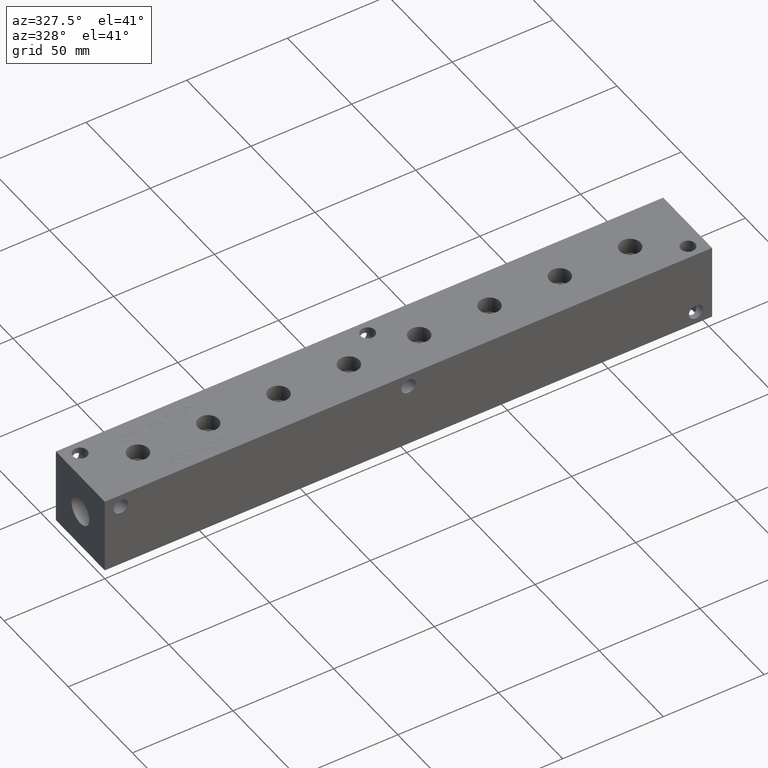
[diagram: clean part render]
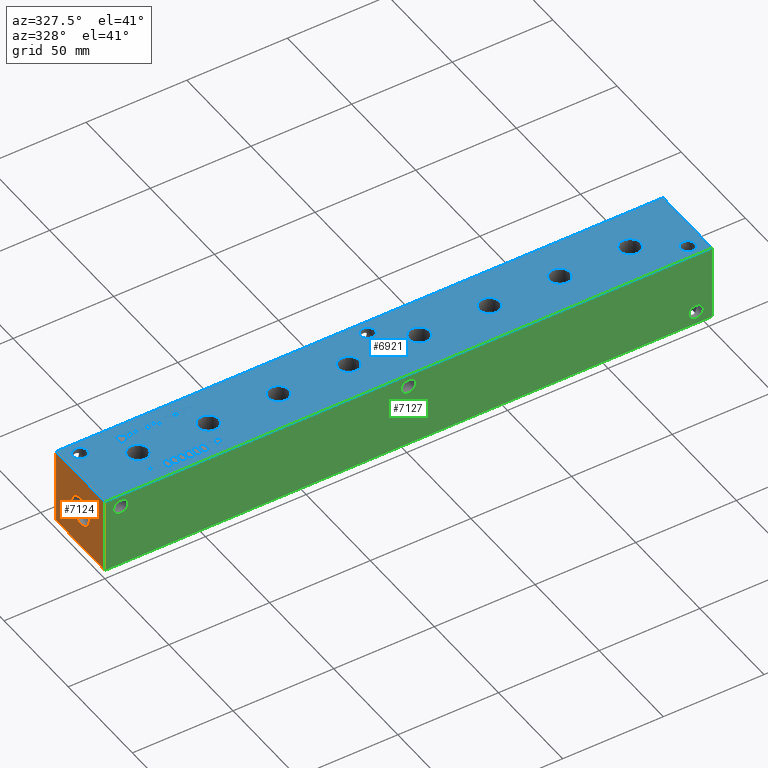
[diagram: same view with three faces highlighted in distinct colors, each labeled with its STEP entity id]
A machine part, auxiliary view with three faces highlighted in distinct colors.
Their STEP definitions:

[orange] entity #7124 — the highlighted planar face has unit normal (-1, 0, 0).
#154=CIRCLE('',#7492,6.9342);
#155=CIRCLE('',#7493,6.9342);
#207=FACE_BOUND('',#1205,.T.);
#427=PLANE('',#7495);
#790=FACE_OUTER_BOUND('',#1204,.T.);
#1204=EDGE_LOOP('',(#6327,#6328,#6329,#6330));
#1205=EDGE_LOOP('',(#6331,#6332));
#1460=LINE('',#11041,#2127);
#1880=LINE('',#12252,#2547);
#1881=LINE('',#12253,#2548);
#1882=LINE('',#12254,#2549);
#2127=VECTOR('',#7856,10.);
#2547=VECTOR('',#8866,10.);
#2548=VECTOR('',#8867,10.);
#2549=VECTOR('',#8868,10.);
#3055=VERTEX_POINT('',#11034);
#3058=VERTEX_POINT('',#11039);
#3423=VERTEX_POINT('',#12242);
#3424=VERTEX_POINT('',#12243);
#3425=VERTEX_POINT('',#12250);
#3426=VERTEX_POINT('',#12251);
#3864=EDGE_CURVE('',#3058,#3055,#1460,.T.);
#4396=EDGE_CURVE('',#3423,#3424,#154,.T.);
#4397=EDGE_CURVE('',#3424,#3423,#155,.T.);
#4400=EDGE_CURVE('',#3425,#3426,#1880,.T.);
#4401=EDGE_CURVE('',#3426,#3055,#1881,.T.);
#4402=EDGE_CURVE('',#3425,#3058,#1882,.T.);
#6327=ORIENTED_EDGE('',*,*,#4400,.T.);
#6328=ORIENTED_EDGE('',*,*,#4401,.T.);
#6329=ORIENTED_EDGE('',*,*,#3864,.F.);
#6330=ORIENTED_EDGE('',*,*,#4402,.F.);
#6331=ORIENTED_EDGE('',*,*,#4396,.T.);
#6332=ORIENTED_EDGE('',*,*,#4397,.T.);
#7124=ADVANCED_FACE('',(#790,#207),#427,.T.);
#7492=AXIS2_PLACEMENT_3D('',#12244,#8856,#8857);
#7493=AXIS2_PLACEMENT_3D('',#12245,#8858,#8859);
#7495=AXIS2_PLACEMENT_3D('',#12249,#8864,#8865);
#7856=DIRECTION('',(0.,-1.,0.));
#8856=DIRECTION('center_axis',(1.,0.,0.));
#8857=DIRECTION('ref_axis',(0.,1.,0.));
#8858=DIRECTION('center_axis',(1.,0.,0.));
#8859=DIRECTION('ref_axis',(0.,1.,0.));
#8864=DIRECTION('center_axis',(-1.,0.,0.));
#8865=DIRECTION('ref_axis',(0.,-1.,0.));
#8866=DIRECTION('',(0.,-1.,0.));
#8867=DIRECTION('',(0.,0.,1.));
#8868=DIRECTION('',(0.,0.,1.));
#11034=CARTESIAN_POINT('',(0.,0.,38.1));
#11039=CARTESIAN_POINT('',(0.,38.1,38.1));
#11041=CARTESIAN_POINT('',(0.,38.1,38.1));
#12242=CARTESIAN_POINT('',(0.,25.9842,19.05));
#12243=CARTESIAN_POINT('',(0.,12.1158,19.05));
#12244=CARTESIAN_POINT('Origin',(0.,19.05,19.05));
#12245=CARTESIAN_POINT('Origin',(0.,19.05,19.05));
#12249=CARTESIAN_POINT('Origin',(0.,38.1,0.));
#12250=CARTESIAN_POINT('',(0.,38.1,0.));
#12251=CARTESIAN_POINT('',(0.,0.,0.));
#12252=CARTESIAN_POINT('',(0.,38.1,0.));
#12253=CARTESIAN_POINT('',(0.,0.,0.));
#12254=CARTESIAN_POINT('',(0.,38.1,0.));

[blue] entity #6921 — the highlighted planar face has unit normal (0, 0, 1).
#68=CIRCLE('',#7201,5.165);
#69=CIRCLE('',#7202,5.165);
#70=CIRCLE('',#7203,5.165);
#71=CIRCLE('',#7204,5.165);
#72=CIRCLE('',#7205,5.165);
#73=CIRCLE('',#7206,5.165);
#74=CIRCLE('',#7207,5.165);
#75=CIRCLE('',#7208,5.165);
#76=CIRCLE('',#7209,5.165);
#77=CIRCLE('',#7210,5.165);
#78=CIRCLE('',#7211,5.165);
#79=CIRCLE('',#7212,5.165);
#80=CIRCLE('',#7213,5.165);
#81=CIRCLE('',#7214,5.165);
#82=CIRCLE('',#7215,5.165);
#83=CIRCLE('',#7216,5.165);
#84=CIRCLE('',#7217,3.5687);
#85=CIRCLE('',#7218,3.5687);
#86=CIRCLE('',#7219,3.5687);
#87=CIRCLE('',#7220,3.5687);
#88=CIRCLE('',#7221,3.5687);
#89=CIRCLE('',#7222,3.5687);
#164=FACE_BOUND('',#959,.T.);
#165=FACE_BOUND('',#960,.T.);
#166=FACE_BOUND('',#961,.T.);
#167=FACE_BOUND('',#962,.T.);
#168=FACE_BOUND('',#963,.T.);
#169=FACE_BOUND('',#964,.T.);
#170=FACE_BOUND('',#965,.T.);
#171=FACE_BOUND('',#966,.T.);
#172=FACE_BOUND('',#967,.T.);
#173=FACE_BOUND('',#968,.T.);
#174=FACE_BOUND('',#969,.T.);
#175=FACE_BOUND('',#970,.T.);
#176=FACE_BOUND('',#971,.T.);
#177=FACE_BOUND('',#972,.T.);
#178=FACE_BOUND('',#973,.T.);
#179=FACE_BOUND('',#974,.T.);
#180=FACE_BOUND('',#975,.T.);
#181=FACE_BOUND('',#976,.T.);
#182=FACE_BOUND('',#977,.T.);
#183=FACE_BOUND('',#978,.T.);
#184=FACE_BOUND('',#979,.T.);
#185=FACE_BOUND('',#980,.T.);
#186=FACE_BOUND('',#981,.T.);
#187=FACE_BOUND('',#982,.T.);
#188=FACE_BOUND('',#983,.T.);
#189=FACE_BOUND('',#984,.T.);
#190=FACE_BOUND('',#985,.T.);
#191=FACE_BOUND('',#986,.T.);
#192=FACE_BOUND('',#987,.T.);
#193=FACE_BOUND('',#988,.T.);
#274=PLANE('',#7200);
#587=FACE_OUTER_BOUND('',#958,.T.);
#958=EDGE_LOOP('',(#5128,#5129,#5130,#5131));
#959=EDGE_LOOP('',(#5132,#5133,#5134,#5135,#5136,#5137,#5138,#5139,#5140));
#960=EDGE_LOOP('',(#5141,#5142,#5143,#5144,#5145,#5146,#5147,#5148,#5149,
#5150,#5151));
#961=EDGE_LOOP('',(#5152,#5153,#5154,#5155));
#962=EDGE_LOOP('',(#5156,#5157,#5158,#5159));
#963=EDGE_LOOP('',(#5160,#5161,#5162,#5163));
#964=EDGE_LOOP('',(#5164,#5165,#5166,#5167));
#965=EDGE_LOOP('',(#5168,#5169,#5170,#5171,#5172,#5173,#5174,#5175,#5176,
#5177,#5178,#5179,#5180,#5181,#5182,#5183,#5184,#5185));
#966=EDGE_LOOP('',(#5186,#5187,#5188,#5189,#5190,#5191,#5192,#5193,#5194,
#5195,#5196,#5197));
#967=EDGE_LOOP('',(#5198,#5199,#5200,#5201));
#968=EDGE_LOOP('',(#5202,#5203,#5204,#5205,#5206,#5207,#5208,#5209,#5210,
#5211,#5212,#5213,#5214,#5215,#5216,#5217,#5218));
#969=EDGE_LOOP('',(#5219,#5220));
#970=EDGE_LOOP('',(#5221,#5222));
#971=EDGE_LOOP('',(#5223,#5224));
#972=EDGE_LOOP('',(#5225,#5226));
#973=EDGE_LOOP('',(#5227,#5228));
#974=EDGE_LOOP('',(#5229,#5230));
#975=EDGE_LOOP('',(#5231,#5232));
#976=EDGE_LOOP('',(#5233,#5234));
#977=EDGE_LOOP('',(#5235,#5236));
#978=EDGE_LOOP('',(#5237,#5238));
#979=EDGE_LOOP('',(#5239,#5240));
#980=EDGE_LOOP('',(#5241,#5242,#5243,#5244,#5245,#5246,#5247,#5248,#5249,
#5250,#5251,#5252,#5253,#5254,#5255,#5256,#5257,#5258));
#981=EDGE_LOOP('',(#5259,#5260,#5261,#5262,#5263,#5264,#5265,#5266,#5267,
#5268,#5269,#5270,#5271,#5272,#5273,#5274,#5275,#5276));
#982=EDGE_LOOP('',(#5277,#5278,#5279,#5280,#5281,#5282,#5283,#5284,#5285,
#5286));
#983=EDGE_LOOP('',(#5287,#5288,#5289,#5290,#5291,#5292,#5293,#5294));
#984=EDGE_LOOP('',(#5295,#5296,#5297,#5298,#5299,#5300,#5301));
#985=EDGE_LOOP('',(#5302,#5303,#5304,#5305,#5306,#5307,#5308,#5309));
#986=EDGE_LOOP('',(#5310,#5311,#5312,#5313,#5314,#5315,#5316,#5317,#5318,
#5319,#5320,#5321,#5322));
#987=EDGE_LOOP('',(#5323,#5324,#5325,#5326,#5327,#5328,#5329,#5330,#5331,
#5332,#5333,#5334,#5335,#5336,#5337,#5338,#5339,#5340));
#988=EDGE_LOOP('',(#5341,#5342,#5343,#5344,#5345,#5346,#5347,#5348,#5349,
#5350,#5351,#5352,#5353,#5354,#5355,#5356,#5357,#5358));
#1237=LINE('',#9022,#1904);
#1240=LINE('',#9028,#1907);
#1243=LINE('',#9034,#1910);
#1246=LINE('',#9040,#1913);
#1249=LINE('',#9046,#1916);
#1266=LINE('',#9319,#1933);
#1273=LINE('',#9401,#1940);
#1326=LINE('',#10379,#1993);
#1330=LINE('',#10387,#1997);
#1333=LINE('',#10393,#2000);
#1336=LINE('',#10399,#2003);
#1339=LINE('',#10405,#2006);
#1342=LINE('',#10411,#2009);
#1345=LINE('',#10417,#2012);
#1348=LINE('',#10423,#2015);
#1351=LINE('',#10429,#2018);
#1354=LINE('',#10435,#2021);
#1357=LINE('',#10441,#2024);
#1360=LINE('',#10447,#2027);
#1363=LINE('',#10453,#2030);
#1366=LINE('',#10459,#2033);
#1369=LINE('',#10465,#2036);
#1372=LINE('',#10471,#2039);
#1375=LINE('',#10477,#2042);
#1378=LINE('',#10482,#2045);
#1380=LINE('',#10488,#2047);
#1384=LINE('',#10496,#2051);
#1387=LINE('',#10502,#2054);
#1390=LINE('',#10508,#2057);
#1393=LINE('',#10514,#2060);
#1396=LINE('',#10520,#2063);
#1399=LINE('',#10526,#2066);
#1402=LINE('',#10532,#2069);
#1405=LINE('',#10538,#2072);
#1408=LINE('',#10544,#2075);
#1411=LINE('',#10550,#2078);
#1414=LINE('',#10555,#2081);
#1428=LINE('',#10790,#2095);
#1432=LINE('',#10798,#2099);
#1440=LINE('',#10899,#2107);
#1443=LINE('',#10905,#2110);
#1452=LINE('',#11025,#2119);
#1455=LINE('',#11030,#2122);
#1457=LINE('',#11036,#2124);
#1458=LINE('',#11038,#2125);
#1459=LINE('',#11040,#2126);
#1460=LINE('',#11041,#2127);
#1461=LINE('',#11088,#2128);
#1462=LINE('',#11090,#2129);
#1463=LINE('',#11092,#2130);
#1464=LINE('',#11094,#2131);
#1465=LINE('',#11096,#2132);
#1466=LINE('',#11098,#2133);
#1467=LINE('',#11100,#2134);
#1468=LINE('',#11102,#2135);
#1469=LINE('',#11104,#2136);
#1470=LINE('',#11106,#2137);
#1471=LINE('',#11108,#2138);
#1472=LINE('',#11110,#2139);
#1473=LINE('',#11112,#2140);
#1474=LINE('',#11114,#2141);
#1475=LINE('',#11116,#2142);
#1476=LINE('',#11118,#2143);
#1477=LINE('',#11120,#2144);
#1478=LINE('',#11121,#2145);
#1479=LINE('',#11124,#2146);
#1480=LINE('',#11126,#2147);
#1481=LINE('',#11128,#2148);
#1482=LINE('',#11130,#2149);
#1483=LINE('',#11132,#2150);
#1484=LINE('',#11134,#2151);
#1485=LINE('',#11136,#2152);
#1486=LINE('',#11138,#2153);
#1487=LINE('',#11140,#2154);
#1488=LINE('',#11142,#2155);
#1489=LINE('',#11144,#2156);
#1490=LINE('',#11146,#2157);
#1491=LINE('',#11148,#2158);
#1492=LINE('',#11150,#2159);
#1493=LINE('',#11152,#2160);
#1494=LINE('',#11154,#2161);
#1495=LINE('',#11156,#2162);
#1496=LINE('',#11157,#2163);
#1497=LINE('',#11160,#2164);
#1498=LINE('',#11162,#2165);
#1499=LINE('',#11164,#2166);
#1500=LINE('',#11166,#2167);
#1501=LINE('',#11168,#2168);
#1502=LINE('',#11170,#2169);
#1503=LINE('',#11172,#2170);
#1504=LINE('',#11174,#2171);
#1505=LINE('',#11176,#2172);
#1506=LINE('',#11177,#2173);
#1507=LINE('',#11180,#2174);
#1508=LINE('',#11182,#2175);
#1509=LINE('',#11184,#2176);
#1510=LINE('',#11186,#2177);
#1511=LINE('',#11188,#2178);
#1512=LINE('',#11190,#2179);
#1513=LINE('',#11192,#2180);
#1514=LINE('',#11193,#2181);
#1515=LINE('',#11211,#2182);
#1516=LINE('',#11213,#2183);
#1517=LINE('',#11215,#2184);
#1518=LINE('',#11222,#2185);
#1519=LINE('',#11224,#2186);
#1520=LINE('',#11226,#2187);
#1521=LINE('',#11228,#2188);
#1522=LINE('',#11230,#2189);
#1523=LINE('',#11232,#2190);
#1524=LINE('',#11234,#2191);
#1525=LINE('',#11235,#2192);
#1526=LINE('',#11238,#2193);
#1527=LINE('',#11240,#2194);
#1528=LINE('',#11242,#2195);
#1529=LINE('',#11244,#2196);
#1530=LINE('',#11246,#2197);
#1531=LINE('',#11248,#2198);
#1532=LINE('',#11250,#2199);
#1533=LINE('',#11252,#2200);
#1534=LINE('',#11254,#2201);
#1535=LINE('',#11256,#2202);
#1536=LINE('',#11258,#2203);
#1537=LINE('',#11260,#2204);
#1538=LINE('',#11261,#2205);
#1539=LINE('',#11264,#2206);
#1540=LINE('',#11266,#2207);
#1541=LINE('',#11268,#2208);
#1542=LINE('',#11270,#2209);
#1543=LINE('',#11272,#2210);
#1544=LINE('',#11274,#2211);
#1545=LINE('',#11276,#2212);
#1546=LINE('',#11278,#2213);
#1547=LINE('',#11280,#2214);
#1548=LINE('',#11282,#2215);
#1549=LINE('',#11284,#2216);
#1550=LINE('',#11286,#2217);
#1551=LINE('',#11288,#2218);
#1552=LINE('',#11290,#2219);
#1553=LINE('',#11292,#2220);
#1554=LINE('',#11294,#2221);
#1555=LINE('',#11296,#2222);
#1556=LINE('',#11297,#2223);
#1557=LINE('',#11300,#2224);
#1558=LINE('',#11302,#2225);
#1559=LINE('',#11304,#2226);
#1560=LINE('',#11306,#2227);
#1561=LINE('',#11308,#2228);
#1562=LINE('',#11310,#2229);
#1563=LINE('',#11312,#2230);
#1564=LINE('',#11314,#2231);
#1565=LINE('',#11316,#2232);
#1566=LINE('',#11318,#2233);
#1567=LINE('',#11320,#2234);
#1568=LINE('',#11322,#2235);
#1569=LINE('',#11324,#2236);
#1570=LINE('',#11326,#2237);
#1571=LINE('',#11328,#2238);
#1572=LINE('',#11330,#2239);
#1573=LINE('',#11332,#2240);
#1574=LINE('',#11333,#2241);
#1904=VECTOR('',#7527,10.);
#1907=VECTOR('',#7532,10.);
#1910=VECTOR('',#7537,10.);
#1913=VECTOR('',#7542,10.);
#1916=VECTOR('',#7547,10.);
#1933=VECTOR('',#7568,10.);
#1940=VECTOR('',#7577,10.);
#1993=VECTOR('',#7642,10.);
#1997=VECTOR('',#7648,10.);
#2000=VECTOR('',#7653,10.);
#2003=VECTOR('',#7658,10.);
#2006=VECTOR('',#7663,10.);
#2009=VECTOR('',#7668,10.);
#2012=VECTOR('',#7673,10.);
#2015=VECTOR('',#7678,10.);
#2018=VECTOR('',#7683,10.);
#2021=VECTOR('',#7688,10.);
#2024=VECTOR('',#7693,10.);
#2027=VECTOR('',#7698,10.);
#2030=VECTOR('',#7703,10.);
#2033=VECTOR('',#7708,10.);
#2036=VECTOR('',#7713,10.);
#2039=VECTOR('',#7718,10.);
#2042=VECTOR('',#7723,10.);
#2045=VECTOR('',#7728,10.);
#2047=VECTOR('',#7734,10.);
#2051=VECTOR('',#7740,10.);
#2054=VECTOR('',#7745,10.);
#2057=VECTOR('',#7750,10.);
#2060=VECTOR('',#7755,10.);
#2063=VECTOR('',#7760,10.);
#2066=VECTOR('',#7765,10.);
#2069=VECTOR('',#7770,10.);
#2072=VECTOR('',#7775,10.);
#2075=VECTOR('',#7780,10.);
#2078=VECTOR('',#7785,10.);
#2081=VECTOR('',#7790,10.);
#2095=VECTOR('',#7810,10.);
#2099=VECTOR('',#7816,10.);
#2107=VECTOR('',#7826,10.);
#2110=VECTOR('',#7831,10.);
#2119=VECTOR('',#7842,10.);
#2122=VECTOR('',#7847,10.);
#2124=VECTOR('',#7853,10.);
#2125=VECTOR('',#7854,10.);
#2126=VECTOR('',#7855,10.);
#2127=VECTOR('',#7856,10.);
#2128=VECTOR('',#7901,10.);
#2129=VECTOR('',#7902,10.);
#2130=VECTOR('',#7903,10.);
#2131=VECTOR('',#7904,10.);
#2132=VECTOR('',#7905,10.);
#2133=VECTOR('',#7906,10.);
#2134=VECTOR('',#7907,10.);
#2135=VECTOR('',#7908,10.);
#2136=VECTOR('',#7909,10.);
#2137=VECTOR('',#7910,10.);
#2138=VECTOR('',#7911,10.);
#2139=VECTOR('',#7912,10.);
#2140=VECTOR('',#7913,10.);
#2141=VECTOR('',#7914,10.);
#2142=VECTOR('',#7915,10.);
#2143=VECTOR('',#7916,10.);
#2144=VECTOR('',#7917,10.);
#2145=VECTOR('',#7918,10.);
#2146=VECTOR('',#7919,10.);
#2147=VECTOR('',#7920,10.);
#2148=VECTOR('',#7921,10.);
#2149=VECTOR('',#7922,10.);
#2150=VECTOR('',#7923,10.);
#2151=VECTOR('',#7924,10.);
#2152=VECTOR('',#7925,10.);
#2153=VECTOR('',#7926,10.);
#2154=VECTOR('',#7927,10.);
#2155=VECTOR('',#7928,10.);
#2156=VECTOR('',#7929,10.);
#2157=VECTOR('',#7930,10.);
#2158=VECTOR('',#7931,10.);
#2159=VECTOR('',#7932,10.);
#2160=VECTOR('',#7933,10.);
#2161=VECTOR('',#7934,10.);
#2162=VECTOR('',#7935,10.);
#2163=VECTOR('',#7936,10.);
#2164=VECTOR('',#7937,10.);
#2165=VECTOR('',#7938,10.);
#2166=VECTOR('',#7939,10.);
#2167=VECTOR('',#7940,10.);
#2168=VECTOR('',#7941,10.);
#2169=VECTOR('',#7942,10.);
#2170=VECTOR('',#7943,10.);
#2171=VECTOR('',#7944,10.);
#2172=VECTOR('',#7945,10.);
#2173=VECTOR('',#7946,10.);
#2174=VECTOR('',#7947,10.);
#2175=VECTOR('',#7948,10.);
#2176=VECTOR('',#7949,10.);
#2177=VECTOR('',#7950,10.);
#2178=VECTOR('',#7951,10.);
#2179=VECTOR('',#7952,10.);
#2180=VECTOR('',#7953,10.);
#2181=VECTOR('',#7954,10.);
#2182=VECTOR('',#7955,10.);
#2183=VECTOR('',#7956,10.);
#2184=VECTOR('',#7957,10.);
#2185=VECTOR('',#7958,10.);
#2186=VECTOR('',#7959,10.);
#2187=VECTOR('',#7960,10.);
#2188=VECTOR('',#7961,10.);
#2189=VECTOR('',#7962,10.);
#2190=VECTOR('',#7963,10.);
#2191=VECTOR('',#7964,10.);
#2192=VECTOR('',#7965,10.);
#2193=VECTOR('',#7966,10.);
#2194=VECTOR('',#7967,10.);
#2195=VECTOR('',#7968,10.);
#2196=VECTOR('',#7969,10.);
#2197=VECTOR('',#7970,10.);
#2198=VECTOR('',#7971,10.);
#2199=VECTOR('',#7972,10.);
#2200=VECTOR('',#7973,10.);
#2201=VECTOR('',#7974,10.);
#2202=VECTOR('',#7975,10.);
#2203=VECTOR('',#7976,10.);
#2204=VECTOR('',#7977,10.);
#2205=VECTOR('',#7978,10.);
#2206=VECTOR('',#7979,10.);
#2207=VECTOR('',#7980,10.);
#2208=VECTOR('',#7981,10.);
#2209=VECTOR('',#7982,10.);
#2210=VECTOR('',#7983,10.);
#2211=VECTOR('',#7984,10.);
#2212=VECTOR('',#7985,10.);
#2213=VECTOR('',#7986,10.);
#2214=VECTOR('',#7987,10.);
#2215=VECTOR('',#7988,10.);
#2216=VECTOR('',#7989,10.);
#2217=VECTOR('',#7990,10.);
#2218=VECTOR('',#7991,10.);
#2219=VECTOR('',#7992,10.);
#2220=VECTOR('',#7993,10.);
#2221=VECTOR('',#7994,10.);
#2222=VECTOR('',#7995,10.);
#2223=VECTOR('',#7996,10.);
#2224=VECTOR('',#7997,10.);
#2225=VECTOR('',#7998,10.);
#2226=VECTOR('',#7999,10.);
#2227=VECTOR('',#8000,10.);
#2228=VECTOR('',#8001,10.);
#2229=VECTOR('',#8002,10.);
#2230=VECTOR('',#8003,10.);
#2231=VECTOR('',#8004,10.);
#2232=VECTOR('',#8005,10.);
#2233=VECTOR('',#8006,10.);
#2234=VECTOR('',#8007,10.);
#2235=VECTOR('',#8008,10.);
#2236=VECTOR('',#8009,10.);
#2237=VECTOR('',#8010,10.);
#2238=VECTOR('',#8011,10.);
#2239=VECTOR('',#8012,10.);
#2240=VECTOR('',#8013,10.);
#2241=VECTOR('',#8014,10.);
#2563=B_SPLINE_CURVE_WITH_KNOTS('',2,(#8989,#8990,#8991,#8992),
 .UNSPECIFIED.,.F.,.F.,(3,1,3),(0.,1.,2.),.UNSPECIFIED.);
#2565=B_SPLINE_CURVE_WITH_KNOTS('',2,(#9010,#9011,#9012,#9013),
 .UNSPECIFIED.,.F.,.F.,(3,1,3),(0.,1.,2.),.UNSPECIFIED.);
#2567=B_SPLINE_CURVE_WITH_KNOTS('',2,(#9059,#9060,#9061,#9062),
 .UNSPECIFIED.,.F.,.F.,(3,1,3),(0.,1.,2.),.UNSPECIFIED.);
#2569=B_SPLINE_CURVE_WITH_KNOTS('',2,(#9077,#9078,#9079,#9080),
 .UNSPECIFIED.,.F.,.F.,(3,1,3),(0.,1.,2.),.UNSPECIFIED.);
#2591=B_SPLINE_CURVE_WITH_KNOTS('',2,(#9286,#9287,#9288,#9289),
 .UNSPECIFIED.,.F.,.F.,(3,1,3),(0.,1.,2.),.UNSPECIFIED.);
#2593=B_SPLINE_CURVE_WITH_KNOTS('',2,(#9307,#9308,#9309,#9310),
 .UNSPECIFIED.,.F.,.F.,(3,1,3),(0.,1.,2.),.UNSPECIFIED.);
#2595=B_SPLINE_CURVE_WITH_KNOTS('',2,(#9332,#9333,#9334,#9335),
 .UNSPECIFIED.,.F.,.F.,(3,1,3),(0.,1.,2.),.UNSPECIFIED.);
#2597=B_SPLINE_CURVE_WITH_KNOTS('',2,(#9351,#9352,#9353,#9354),
 .UNSPECIFIED.,.F.,.F.,(3,1,3),(0.,1.,2.),.UNSPECIFIED.);
#2599=B_SPLINE_CURVE_WITH_KNOTS('',2,(#9370,#9371,#9372,#9373),
 .UNSPECIFIED.,.F.,.F.,(3,1,3),(0.,1.,2.),.UNSPECIFIED.);
#2601=B_SPLINE_CURVE_WITH_KNOTS('',2,(#9389,#9390,#9391,#9392),
 .UNSPECIFIED.,.F.,.F.,(3,1,3),(0.,1.,2.),.UNSPECIFIED.);
#2603=B_SPLINE_CURVE_WITH_KNOTS('',2,(#9414,#9415,#9416,#9417),
 .UNSPECIFIED.,.F.,.F.,(3,1,3),(0.,1.,2.),.UNSPECIFIED.);
#2605=B_SPLINE_CURVE_WITH_KNOTS('',2,(#9433,#9434,#9435,#9436),
 .UNSPECIFIED.,.F.,.F.,(3,1,3),(0.,1.,2.),.UNSPECIFIED.);
#2607=B_SPLINE_CURVE_WITH_KNOTS('',2,(#9451,#9452,#9453,#9454),
 .UNSPECIFIED.,.F.,.F.,(3,1,3),(0.,1.,2.),.UNSPECIFIED.);
#2625=B_SPLINE_CURVE_WITH_KNOTS('',2,(#9622,#9623,#9624,#9625),
 .UNSPECIFIED.,.F.,.F.,(3,1,3),(0.,1.,2.),.UNSPECIFIED.);
#2627=B_SPLINE_CURVE_WITH_KNOTS('',2,(#9643,#9644,#9645,#9646),
 .UNSPECIFIED.,.F.,.F.,(3,1,3),(0.,1.,2.),.UNSPECIFIED.);
#2629=B_SPLINE_CURVE_WITH_KNOTS('',2,(#9662,#9663,#9664,#9665),
 .UNSPECIFIED.,.F.,.F.,(3,1,3),(0.,1.,2.),.UNSPECIFIED.);
#2631=B_SPLINE_CURVE_WITH_KNOTS('',2,(#9680,#9681,#9682,#9683),
 .UNSPECIFIED.,.F.,.F.,(3,1,3),(0.,1.,2.),.UNSPECIFIED.);
#2649=B_SPLINE_CURVE_WITH_KNOTS('',2,(#9851,#9852,#9853,#9854),
 .UNSPECIFIED.,.F.,.F.,(3,1,3),(0.,1.,2.),.UNSPECIFIED.);
#2651=B_SPLINE_CURVE_WITH_KNOTS('',2,(#9872,#9873,#9874,#9875),
 .UNSPECIFIED.,.F.,.F.,(3,1,3),(0.,1.,2.),.UNSPECIFIED.);
#2653=B_SPLINE_CURVE_WITH_KNOTS('',2,(#9891,#9892,#9893,#9894),
 .UNSPECIFIED.,.F.,.F.,(3,1,3),(0.,1.,2.),.UNSPECIFIED.);
#2655=B_SPLINE_CURVE_WITH_KNOTS('',2,(#9909,#9910,#9911,#9912),
 .UNSPECIFIED.,.F.,.F.,(3,1,3),(0.,1.,2.),.UNSPECIFIED.);
#2673=B_SPLINE_CURVE_WITH_KNOTS('',2,(#10080,#10081,#10082,#10083),
 .UNSPECIFIED.,.F.,.F.,(3,1,3),(0.,1.,2.),.UNSPECIFIED.);
#2675=B_SPLINE_CURVE_WITH_KNOTS('',2,(#10101,#10102,#10103,#10104),
 .UNSPECIFIED.,.F.,.F.,(3,1,3),(0.,1.,2.),.UNSPECIFIED.);
#2677=B_SPLINE_CURVE_WITH_KNOTS('',2,(#10120,#10121,#10122,#10123),
 .UNSPECIFIED.,.F.,.F.,(3,1,3),(0.,1.,2.),.UNSPECIFIED.);
#2679=B_SPLINE_CURVE_WITH_KNOTS('',2,(#10138,#10139,#10140,#10141),
 .UNSPECIFIED.,.F.,.F.,(3,1,3),(0.,1.,2.),.UNSPECIFIED.);
#2697=B_SPLINE_CURVE_WITH_KNOTS('',2,(#10309,#10310,#10311,#10312),
 .UNSPECIFIED.,.F.,.F.,(3,1,3),(0.,1.,2.),.UNSPECIFIED.);
#2699=B_SPLINE_CURVE_WITH_KNOTS('',2,(#10330,#10331,#10332,#10333),
 .UNSPECIFIED.,.F.,.F.,(3,1,3),(0.,1.,2.),.UNSPECIFIED.);
#2701=B_SPLINE_CURVE_WITH_KNOTS('',2,(#10349,#10350,#10351,#10352),
 .UNSPECIFIED.,.F.,.F.,(3,1,3),(0.,1.,2.),.UNSPECIFIED.);
#2703=B_SPLINE_CURVE_WITH_KNOTS('',2,(#10367,#10368,#10369,#10370),
 .UNSPECIFIED.,.F.,.F.,(3,1,3),(0.,1.,2.),.UNSPECIFIED.);
#2721=B_SPLINE_CURVE_WITH_KNOTS('',2,(#10720,#10721,#10722,#10723),
 .UNSPECIFIED.,.F.,.F.,(3,1,3),(0.,1.,2.),.UNSPECIFIED.);
#2723=B_SPLINE_CURVE_WITH_KNOTS('',2,(#10741,#10742,#10743,#10744),
 .UNSPECIFIED.,.F.,.F.,(3,1,3),(0.,1.,2.),.UNSPECIFIED.);
#2725=B_SPLINE_CURVE_WITH_KNOTS('',2,(#10760,#10761,#10762,#10763),
 .UNSPECIFIED.,.F.,.F.,(3,1,3),(0.,1.,2.),.UNSPECIFIED.);
#2727=B_SPLINE_CURVE_WITH_KNOTS('',2,(#10778,#10779,#10780,#10781),
 .UNSPECIFIED.,.F.,.F.,(3,1,3),(0.,1.,2.),.UNSPECIFIED.);
#2729=B_SPLINE_CURVE_WITH_KNOTS('',2,(#10811,#10812,#10813,#10814),
 .UNSPECIFIED.,.F.,.F.,(3,1,3),(0.,1.,2.),.UNSPECIFIED.);
#2731=B_SPLINE_CURVE_WITH_KNOTS('',2,(#10830,#10831,#10832,#10833),
 .UNSPECIFIED.,.F.,.F.,(3,1,3),(0.,1.,2.),.UNSPECIFIED.);
#2733=B_SPLINE_CURVE_WITH_KNOTS('',2,(#10849,#10850,#10851,#10852),
 .UNSPECIFIED.,.F.,.F.,(3,1,3),(0.,1.,2.),.UNSPECIFIED.);
#2735=B_SPLINE_CURVE_WITH_KNOTS('',2,(#10868,#10869,#10870,#10871),
 .UNSPECIFIED.,.F.,.F.,(3,1,3),(0.,1.,2.),.UNSPECIFIED.);
#2737=B_SPLINE_CURVE_WITH_KNOTS('',2,(#10887,#10888,#10889,#10890),
 .UNSPECIFIED.,.F.,.F.,(3,1,3),(0.,1.,2.),.UNSPECIFIED.);
#2739=B_SPLINE_CURVE_WITH_KNOTS('',2,(#10918,#10919,#10920,#10921),
 .UNSPECIFIED.,.F.,.F.,(3,1,3),(0.,1.,2.),.UNSPECIFIED.);
#2741=B_SPLINE_CURVE_WITH_KNOTS('',2,(#10937,#10938,#10939,#10940),
 .UNSPECIFIED.,.F.,.F.,(3,1,3),(0.,1.,2.),.UNSPECIFIED.);
#2743=B_SPLINE_CURVE_WITH_KNOTS('',2,(#10956,#10957,#10958,#10959),
 .UNSPECIFIED.,.F.,.F.,(3,1,3),(0.,1.,2.),.UNSPECIFIED.);
#2745=B_SPLINE_CURVE_WITH_KNOTS('',2,(#10975,#10976,#10977,#10978),
 .UNSPECIFIED.,.F.,.F.,(3,1,3),(0.,1.,2.),.UNSPECIFIED.);
#2747=B_SPLINE_CURVE_WITH_KNOTS('',2,(#10994,#10995,#10996,#10997),
 .UNSPECIFIED.,.F.,.F.,(3,1,3),(0.,1.,2.),.UNSPECIFIED.);
#2749=B_SPLINE_CURVE_WITH_KNOTS('',2,(#11013,#11014,#11015,#11016),
 .UNSPECIFIED.,.F.,.F.,(3,1,3),(0.,1.,2.),.UNSPECIFIED.);
#2751=B_SPLINE_CURVE_WITH_KNOTS('',2,(#11196,#11197,#11198,#11199),
 .UNSPECIFIED.,.F.,.F.,(3,1,3),(0.,1.,2.),.UNSPECIFIED.);
#2752=B_SPLINE_CURVE_WITH_KNOTS('',2,(#11201,#11202,#11203,#11204),
 .UNSPECIFIED.,.F.,.F.,(3,1,3),(0.,1.,2.),.UNSPECIFIED.);
#2753=B_SPLINE_CURVE_WITH_KNOTS('',2,(#11206,#11207,#11208,#11209),
 .UNSPECIFIED.,.F.,.F.,(3,1,3),(0.,1.,2.),.UNSPECIFIED.);
#2754=B_SPLINE_CURVE_WITH_KNOTS('',2,(#11216,#11217,#11218,#11219),
 .UNSPECIFIED.,.F.,.F.,(3,1,3),(0.,1.,2.),.UNSPECIFIED.);
#2781=VERTEX_POINT('',#8987);
#2782=VERTEX_POINT('',#8988);
#2785=VERTEX_POINT('',#9009);
#2787=VERTEX_POINT('',#9021);
#2789=VERTEX_POINT('',#9027);
#2791=VERTEX_POINT('',#9033);
#2793=VERTEX_POINT('',#9039);
#2795=VERTEX_POINT('',#9045);
#2797=VERTEX_POINT('',#9058);
#2819=VERTEX_POINT('',#9284);
#2820=VERTEX_POINT('',#9285);
#2823=VERTEX_POINT('',#9306);
#2825=VERTEX_POINT('',#9318);
#2827=VERTEX_POINT('',#9331);
#2829=VERTEX_POINT('',#9350);
#2831=VERTEX_POINT('',#9369);
#2833=VERTEX_POINT('',#9388);
#2835=VERTEX_POINT('',#9400);
#2837=VERTEX_POINT('',#9413);
#2839=VERTEX_POINT('',#9432);
#2857=VERTEX_POINT('',#9620);
#2858=VERTEX_POINT('',#9621);
#2861=VERTEX_POINT('',#9642);
#2863=VERTEX_POINT('',#9661);
#2881=VERTEX_POINT('',#9849);
#2882=VERTEX_POINT('',#9850);
#2885=VERTEX_POINT('',#9871);
#2887=VERTEX_POINT('',#9890);
#2905=VERTEX_POINT('',#10078);
#2906=VERTEX_POINT('',#10079);
#2909=VERTEX_POINT('',#10100);
#2911=VERTEX_POINT('',#10119);
#2929=VERTEX_POINT('',#10307);
#2930=VERTEX_POINT('',#10308);
#2933=VERTEX_POINT('',#10329);
#2935=VERTEX_POINT('',#10348);
#2937=VERTEX_POINT('',#10377);
#2938=VERTEX_POINT('',#10378);
#2941=VERTEX_POINT('',#10386);
#2943=VERTEX_POINT('',#10392);
#2945=VERTEX_POINT('',#10398);
#2947=VERTEX_POINT('',#10404);
#2949=VERTEX_POINT('',#10410);
#2951=VERTEX_POINT('',#10416);
#2953=VERTEX_POINT('',#10422);
#2955=VERTEX_POINT('',#10428);
#2957=VERTEX_POINT('',#10434);
#2959=VERTEX_POINT('',#10440);
#2961=VERTEX_POINT('',#10446);
#2963=VERTEX_POINT('',#10452);
#2965=VERTEX_POINT('',#10458);
#2967=VERTEX_POINT('',#10464);
#2969=VERTEX_POINT('',#10470);
#2971=VERTEX_POINT('',#10476);
#2973=VERTEX_POINT('',#10486);
#2974=VERTEX_POINT('',#10487);
#2977=VERTEX_POINT('',#10495);
#2979=VERTEX_POINT('',#10501);
#2981=VERTEX_POINT('',#10507);
#2983=VERTEX_POINT('',#10513);
#2985=VERTEX_POINT('',#10519);
#2987=VERTEX_POINT('',#10525);
#2989=VERTEX_POINT('',#10531);
#2991=VERTEX_POINT('',#10537);
#2993=VERTEX_POINT('',#10543);
#2995=VERTEX_POINT('',#10549);
#3013=VERTEX_POINT('',#10718);
#3014=VERTEX_POINT('',#10719);
#3017=VERTEX_POINT('',#10740);
#3019=VERTEX_POINT('',#10759);
#3021=VERTEX_POINT('',#10788);
#3022=VERTEX_POINT('',#10789);
#3025=VERTEX_POINT('',#10797);
#3027=VERTEX_POINT('',#10810);
#3029=VERTEX_POINT('',#10829);
#3031=VERTEX_POINT('',#10848);
#3033=VERTEX_POINT('',#10867);
#3035=VERTEX_POINT('',#10886);
#3037=VERTEX_POINT('',#10898);
#3039=VERTEX_POINT('',#10904);
#3041=VERTEX_POINT('',#10917);
#3043=VERTEX_POINT('',#10936);
#3045=VERTEX_POINT('',#10955);
#3047=VERTEX_POINT('',#10974);
#3049=VERTEX_POINT('',#10993);
#3051=VERTEX_POINT('',#11012);
#3053=VERTEX_POINT('',#11024);
#3055=VERTEX_POINT('',#11034);
#3056=VERTEX_POINT('',#11035);
#3057=VERTEX_POINT('',#11037);
#3058=VERTEX_POINT('',#11039);
#3059=VERTEX_POINT('',#11042);
#3060=VERTEX_POINT('',#11043);
#3061=VERTEX_POINT('',#11046);
#3062=VERTEX_POINT('',#11047);
#3063=VERTEX_POINT('',#11050);
#3064=VERTEX_POINT('',#11051);
#3065=VERTEX_POINT('',#11054);
#3066=VERTEX_POINT('',#11055);
#3067=VERTEX_POINT('',#11058);
#3068=VERTEX_POINT('',#11059);
#3069=VERTEX_POINT('',#11062);
#3070=VERTEX_POINT('',#11063);
#3071=VERTEX_POINT('',#11066);
#3072=VERTEX_POINT('',#11067);
#3073=VERTEX_POINT('',#11070);
#3074=VERTEX_POINT('',#11071);
#3075=VERTEX_POINT('',#11074);
#3076=VERTEX_POINT('',#11075);
#3077=VERTEX_POINT('',#11078);
#3078=VERTEX_POINT('',#11079);
#3079=VERTEX_POINT('',#11082);
#3080=VERTEX_POINT('',#11083);
#3081=VERTEX_POINT('',#11086);
#3082=VERTEX_POINT('',#11087);
#3083=VERTEX_POINT('',#11089);
#3084=VERTEX_POINT('',#11091);
#3085=VERTEX_POINT('',#11093);
#3086=VERTEX_POINT('',#11095);
#3087=VERTEX_POINT('',#11097);
#3088=VERTEX_POINT('',#11099);
#3089=VERTEX_POINT('',#11101);
#3090=VERTEX_POINT('',#11103);
#3091=VERTEX_POINT('',#11105);
#3092=VERTEX_POINT('',#11107);
#3093=VERTEX_POINT('',#11109);
#3094=VERTEX_POINT('',#11111);
#3095=VERTEX_POINT('',#11113);
#3096=VERTEX_POINT('',#11115);
#3097=VERTEX_POINT('',#11117);
#3098=VERTEX_POINT('',#11119);
#3099=VERTEX_POINT('',#11122);
#3100=VERTEX_POINT('',#11123);
#3101=VERTEX_POINT('',#11125);
#3102=VERTEX_POINT('',#11127);
#3103=VERTEX_POINT('',#11129);
#3104=VERTEX_POINT('',#11131);
#3105=VERTEX_POINT('',#11133);
#3106=VERTEX_POINT('',#11135);
#3107=VERTEX_POINT('',#11137);
#3108=VERTEX_POINT('',#11139);
#3109=VERTEX_POINT('',#11141);
#3110=VERTEX_POINT('',#11143);
#3111=VERTEX_POINT('',#11145);
#3112=VERTEX_POINT('',#11147);
#3113=VERTEX_POINT('',#11149);
#3114=VERTEX_POINT('',#11151);
#3115=VERTEX_POINT('',#11153);
#3116=VERTEX_POINT('',#11155);
#3117=VERTEX_POINT('',#11158);
#3118=VERTEX_POINT('',#11159);
#3119=VERTEX_POINT('',#11161);
#3120=VERTEX_POINT('',#11163);
#3121=VERTEX_POINT('',#11165);
#3122=VERTEX_POINT('',#11167);
#3123=VERTEX_POINT('',#11169);
#3124=VERTEX_POINT('',#11171);
#3125=VERTEX_POINT('',#11173);
#3126=VERTEX_POINT('',#11175);
#3127=VERTEX_POINT('',#11178);
#3128=VERTEX_POINT('',#11179);
#3129=VERTEX_POINT('',#11181);
#3130=VERTEX_POINT('',#11183);
#3131=VERTEX_POINT('',#11185);
#3132=VERTEX_POINT('',#11187);
#3133=VERTEX_POINT('',#11189);
#3134=VERTEX_POINT('',#11191);
#3135=VERTEX_POINT('',#11194);
#3136=VERTEX_POINT('',#11195);
#3137=VERTEX_POINT('',#11200);
#3138=VERTEX_POINT('',#11205);
#3139=VERTEX_POINT('',#11210);
#3140=VERTEX_POINT('',#11212);
#3141=VERTEX_POINT('',#11214);
#3142=VERTEX_POINT('',#11220);
#3143=VERTEX_POINT('',#11221);
#3144=VERTEX_POINT('',#11223);
#3145=VERTEX_POINT('',#11225);
#3146=VERTEX_POINT('',#11227);
#3147=VERTEX_POINT('',#11229);
#3148=VERTEX_POINT('',#11231);
#3149=VERTEX_POINT('',#11233);
#3150=VERTEX_POINT('',#11236);
#3151=VERTEX_POINT('',#11237);
#3152=VERTEX_POINT('',#11239);
#3153=VERTEX_POINT('',#11241);
#3154=VERTEX_POINT('',#11243);
#3155=VERTEX_POINT('',#11245);
#3156=VERTEX_POINT('',#11247);
#3157=VERTEX_POINT('',#11249);
#3158=VERTEX_POINT('',#11251);
#3159=VERTEX_POINT('',#11253);
#3160=VERTEX_POINT('',#11255);
#3161=VERTEX_POINT('',#11257);
#3162=VERTEX_POINT('',#11259);
#3163=VERTEX_POINT('',#11262);
#3164=VERTEX_POINT('',#11263);
#3165=VERTEX_POINT('',#11265);
#3166=VERTEX_POINT('',#11267);
#3167=VERTEX_POINT('',#11269);
#3168=VERTEX_POINT('',#11271);
#3169=VERTEX_POINT('',#11273);
#3170=VERTEX_POINT('',#11275);
#3171=VERTEX_POINT('',#11277);
#3172=VERTEX_POINT('',#11279);
#3173=VERTEX_POINT('',#11281);
#3174=VERTEX_POINT('',#11283);
#3175=VERTEX_POINT('',#11285);
#3176=VERTEX_POINT('',#11287);
#3177=VERTEX_POINT('',#11289);
#3178=VERTEX_POINT('',#11291);
#3179=VERTEX_POINT('',#11293);
#3180=VERTEX_POINT('',#11295);
#3181=VERTEX_POINT('',#11298);
#3182=VERTEX_POINT('',#11299);
#3183=VERTEX_POINT('',#11301);
#3184=VERTEX_POINT('',#11303);
#3185=VERTEX_POINT('',#11305);
#3186=VERTEX_POINT('',#11307);
#3187=VERTEX_POINT('',#11309);
#3188=VERTEX_POINT('',#11311);
#3189=VERTEX_POINT('',#11313);
#3190=VERTEX_POINT('',#11315);
#3191=VERTEX_POINT('',#11317);
#3192=VERTEX_POINT('',#11319);
#3193=VERTEX_POINT('',#11321);
#3194=VERTEX_POINT('',#11323);
#3195=VERTEX_POINT('',#11325);
#3196=VERTEX_POINT('',#11327);
#3197=VERTEX_POINT('',#11329);
#3198=VERTEX_POINT('',#11331);
#3450=EDGE_CURVE('',#2781,#2782,#2563,.T.);
#3454=EDGE_CURVE('',#2785,#2781,#2565,.T.);
#3457=EDGE_CURVE('',#2787,#2785,#1237,.T.);
#3460=EDGE_CURVE('',#2789,#2787,#1240,.T.);
#3463=EDGE_CURVE('',#2791,#2789,#1243,.T.);
#3466=EDGE_CURVE('',#2793,#2791,#1246,.T.);
#3469=EDGE_CURVE('',#2795,#2793,#1249,.T.);
#3472=EDGE_CURVE('',#2797,#2795,#2567,.T.);
#3475=EDGE_CURVE('',#2782,#2797,#2569,.T.);
#3507=EDGE_CURVE('',#2819,#2820,#2591,.T.);
#3511=EDGE_CURVE('',#2823,#2819,#2593,.T.);
#3514=EDGE_CURVE('',#2825,#2823,#1266,.T.);
#3517=EDGE_CURVE('',#2827,#2825,#2595,.T.);
#3520=EDGE_CURVE('',#2829,#2827,#2597,.T.);
#3523=EDGE_CURVE('',#2831,#2829,#2599,.T.);
#3526=EDGE_CURVE('',#2833,#2831,#2601,.T.);
#3529=EDGE_CURVE('',#2835,#2833,#1273,.T.);
#3532=EDGE_CURVE('',#2837,#2835,#2603,.T.);
#3535=EDGE_CURVE('',#2839,#2837,#2605,.T.);
#3538=EDGE_CURVE('',#2820,#2839,#2607,.T.);
#3564=EDGE_CURVE('',#2857,#2858,#2625,.T.);
#3568=EDGE_CURVE('',#2861,#2857,#2627,.T.);
#3571=EDGE_CURVE('',#2863,#2861,#2629,.T.);
#3574=EDGE_CURVE('',#2858,#2863,#2631,.T.);
#3600=EDGE_CURVE('',#2881,#2882,#2649,.T.);
#3604=EDGE_CURVE('',#2885,#2881,#2651,.T.);
#3607=EDGE_CURVE('',#2887,#2885,#2653,.T.);
#3610=EDGE_CURVE('',#2882,#2887,#2655,.T.);
#3636=EDGE_CURVE('',#2905,#2906,#2673,.T.);
#3640=EDGE_CURVE('',#2909,#2905,#2675,.T.);
#3643=EDGE_CURVE('',#2911,#2909,#2677,.T.);
#3646=EDGE_CURVE('',#2906,#2911,#2679,.T.);
#3672=EDGE_CURVE('',#2929,#2930,#2697,.T.);
#3676=EDGE_CURVE('',#2933,#2929,#2699,.T.);
#3679=EDGE_CURVE('',#2935,#2933,#2701,.T.);
#3682=EDGE_CURVE('',#2930,#2935,#2703,.T.);
#3684=EDGE_CURVE('',#2937,#2938,#1326,.T.);
#3688=EDGE_CURVE('',#2941,#2937,#1330,.T.);
#3691=EDGE_CURVE('',#2943,#2941,#1333,.T.);
#3694=EDGE_CURVE('',#2945,#2943,#1336,.T.);
#3697=EDGE_CURVE('',#2947,#2945,#1339,.T.);
#3700=EDGE_CURVE('',#2949,#2947,#1342,.T.);
#3703=EDGE_CURVE('',#2951,#2949,#1345,.T.);
#3706=EDGE_CURVE('',#2953,#2951,#1348,.T.);
#3709=EDGE_CURVE('',#2955,#2953,#1351,.T.);
#3712=EDGE_CURVE('',#2957,#2955,#1354,.T.);
#3715=EDGE_CURVE('',#2959,#2957,#1357,.T.);
#3718=EDGE_CURVE('',#2961,#2959,#1360,.T.);
#3721=EDGE_CURVE('',#2963,#2961,#1363,.T.);
#3724=EDGE_CURVE('',#2965,#2963,#1366,.T.);
#3727=EDGE_CURVE('',#2967,#2965,#1369,.T.);
#3730=EDGE_CURVE('',#2969,#2967,#1372,.T.);
#3733=EDGE_CURVE('',#2971,#2969,#1375,.T.);
#3736=EDGE_CURVE('',#2938,#2971,#1378,.T.);
#3738=EDGE_CURVE('',#2973,#2974,#1380,.T.);
#3742=EDGE_CURVE('',#2977,#2973,#1384,.T.);
#3745=EDGE_CURVE('',#2979,#2977,#1387,.T.);
#3748=EDGE_CURVE('',#2981,#2979,#1390,.T.);
#3751=EDGE_CURVE('',#2983,#2981,#1393,.T.);
#3754=EDGE_CURVE('',#2985,#2983,#1396,.T.);
#3757=EDGE_CURVE('',#2987,#2985,#1399,.T.);
#3760=EDGE_CURVE('',#2989,#2987,#1402,.T.);
#3763=EDGE_CURVE('',#2991,#2989,#1405,.T.);
#3766=EDGE_CURVE('',#2993,#2991,#1408,.T.);
#3769=EDGE_CURVE('',#2995,#2993,#1411,.T.);
#3772=EDGE_CURVE('',#2974,#2995,#1414,.T.);
#3798=EDGE_CURVE('',#3013,#3014,#2721,.T.);
#3802=EDGE_CURVE('',#3017,#3013,#2723,.T.);
#3805=EDGE_CURVE('',#3019,#3017,#2725,.T.);
#3808=EDGE_CURVE('',#3014,#3019,#2727,.T.);
#3810=EDGE_CURVE('',#3021,#3022,#1428,.T.);
#3814=EDGE_CURVE('',#3025,#3021,#1432,.T.);
#3817=EDGE_CURVE('',#3027,#3025,#2729,.T.);
#3820=EDGE_CURVE('',#3029,#3027,#2731,.T.);
#3823=EDGE_CURVE('',#3031,#3029,#2733,.T.);
#3826=EDGE_CURVE('',#3033,#3031,#2735,.T.);
#3829=EDGE_CURVE('',#3035,#3033,#2737,.T.);
#3832=EDGE_CURVE('',#3037,#3035,#1440,.T.);
#3835=EDGE_CURVE('',#3039,#3037,#1443,.T.);
#3838=EDGE_CURVE('',#3041,#3039,#2739,.T.);
#3841=EDGE_CURVE('',#3043,#3041,#2741,.T.);
#3844=EDGE_CURVE('',#3045,#3043,#2743,.T.);
#3847=EDGE_CURVE('',#3047,#3045,#2745,.T.);
#3850=EDGE_CURVE('',#3049,#3047,#2747,.T.);
#3853=EDGE_CURVE('',#3051,#3049,#2749,.T.);
#3856=EDGE_CURVE('',#3053,#3051,#1452,.T.);
#3859=EDGE_CURVE('',#3022,#3053,#1455,.T.);
#3861=EDGE_CURVE('',#3055,#3056,#1457,.T.);
#3862=EDGE_CURVE('',#3056,#3057,#1458,.T.);
#3863=EDGE_CURVE('',#3057,#3058,#1459,.T.);
#3864=EDGE_CURVE('',#3058,#3055,#1460,.T.);
#3865=EDGE_CURVE('',#3059,#3060,#68,.T.);
#3866=EDGE_CURVE('',#3060,#3059,#69,.T.);
#3867=EDGE_CURVE('',#3061,#3062,#70,.T.);
#3868=EDGE_CURVE('',#3062,#3061,#71,.T.);
#3869=EDGE_CURVE('',#3063,#3064,#72,.T.);
#3870=EDGE_CURVE('',#3064,#3063,#73,.T.);
#3871=EDGE_CURVE('',#3065,#3066,#74,.T.);
#3872=EDGE_CURVE('',#3066,#3065,#75,.T.);
#3873=EDGE_CURVE('',#3067,#3068,#76,.T.);
#3874=EDGE_CURVE('',#3068,#3067,#77,.T.);
#3875=EDGE_CURVE('',#3069,#3070,#78,.T.);
#3876=EDGE_CURVE('',#3070,#3069,#79,.T.);
#3877=EDGE_CURVE('',#3071,#3072,#80,.T.);
#3878=EDGE_CURVE('',#3072,#3071,#81,.T.);
#3879=EDGE_CURVE('',#3073,#3074,#82,.T.);
#3880=EDGE_CURVE('',#3074,#3073,#83,.T.);
#3881=EDGE_CURVE('',#3075,#3076,#84,.T.);
#3882=EDGE_CURVE('',#3076,#3075,#85,.T.);
#3883=EDGE_CURVE('',#3077,#3078,#86,.T.);
#3884=EDGE_CURVE('',#3078,#3077,#87,.T.);
#3885=EDGE_CURVE('',#3079,#3080,#88,.T.);
#3886=EDGE_CURVE('',#3080,#3079,#89,.T.);
#3887=EDGE_CURVE('',#3081,#3082,#1461,.T.);
#3888=EDGE_CURVE('',#3082,#3083,#1462,.T.);
#3889=EDGE_CURVE('',#3083,#3084,#1463,.T.);
#3890=EDGE_CURVE('',#3084,#3085,#1464,.T.);
#3891=EDGE_CURVE('',#3085,#3086,#1465,.T.);
#3892=EDGE_CURVE('',#3086,#3087,#1466,.T.);
#3893=EDGE_CURVE('',#3087,#3088,#1467,.T.);
#3894=EDGE_CURVE('',#3088,#3089,#1468,.T.);
#3895=EDGE_CURVE('',#3089,#3090,#1469,.T.);
#3896=EDGE_CURVE('',#3090,#3091,#1470,.T.);
#3897=EDGE_CURVE('',#3091,#3092,#1471,.T.);
#3898=EDGE_CURVE('',#3092,#3093,#1472,.T.);
#3899=EDGE_CURVE('',#3093,#3094,#1473,.T.);
#3900=EDGE_CURVE('',#3094,#3095,#1474,.T.);
#3901=EDGE_CURVE('',#3095,#3096,#1475,.T.);
#3902=EDGE_CURVE('',#3096,#3097,#1476,.T.);
#3903=EDGE_CURVE('',#3097,#3098,#1477,.T.);
#3904=EDGE_CURVE('',#3098,#3081,#1478,.T.);
#3905=EDGE_CURVE('',#3099,#3100,#1479,.T.);
#3906=EDGE_CURVE('',#3100,#3101,#1480,.T.);
#3907=EDGE_CURVE('',#3101,#3102,#1481,.T.);
#3908=EDGE_CURVE('',#3102,#3103,#1482,.T.);
#3909=EDGE_CURVE('',#3103,#3104,#1483,.T.);
#3910=EDGE_CURVE('',#3104,#3105,#1484,.T.);
#3911=EDGE_CURVE('',#3105,#3106,#1485,.T.);
#3912=EDGE_CURVE('',#3106,#3107,#1486,.T.);
#3913=EDGE_CURVE('',#3107,#3108,#1487,.T.);
#3914=EDGE_CURVE('',#3108,#3109,#1488,.T.);
#3915=EDGE_CURVE('',#3109,#3110,#1489,.T.);
#3916=EDGE_CURVE('',#3110,#3111,#1490,.T.);
#3917=EDGE_CURVE('',#3111,#3112,#1491,.T.);
#3918=EDGE_CURVE('',#3112,#3113,#1492,.T.);
#3919=EDGE_CURVE('',#3113,#3114,#1493,.T.);
#3920=EDGE_CURVE('',#3114,#3115,#1494,.T.);
#3921=EDGE_CURVE('',#3115,#3116,#1495,.T.);
#3922=EDGE_CURVE('',#3116,#3099,#1496,.T.);
#3923=EDGE_CURVE('',#3117,#3118,#1497,.T.);
#3924=EDGE_CURVE('',#3118,#3119,#1498,.T.);
#3925=EDGE_CURVE('',#3119,#3120,#1499,.T.);
#3926=EDGE_CURVE('',#3120,#3121,#1500,.T.);
#3927=EDGE_CURVE('',#3121,#3122,#1501,.T.);
#3928=EDGE_CURVE('',#3122,#3123,#1502,.T.);
#3929=EDGE_CURVE('',#3123,#3124,#1503,.T.);
#3930=EDGE_CURVE('',#3124,#3125,#1504,.T.);
#3931=EDGE_CURVE('',#3125,#3126,#1505,.T.);
#3932=EDGE_CURVE('',#3126,#3117,#1506,.T.);
#3933=EDGE_CURVE('',#3127,#3128,#1507,.T.);
#3934=EDGE_CURVE('',#3128,#3129,#1508,.T.);
#3935=EDGE_CURVE('',#3129,#3130,#1509,.T.);
#3936=EDGE_CURVE('',#3130,#3131,#1510,.T.);
#3937=EDGE_CURVE('',#3131,#3132,#1511,.T.);
#3938=EDGE_CURVE('',#3132,#3133,#1512,.T.);
#3939=EDGE_CURVE('',#3133,#3134,#1513,.T.);
#3940=EDGE_CURVE('',#3134,#3127,#1514,.T.);
#3941=EDGE_CURVE('',#3135,#3136,#2751,.T.);
#3942=EDGE_CURVE('',#3136,#3137,#2752,.T.);
#3943=EDGE_CURVE('',#3137,#3138,#2753,.T.);
#3944=EDGE_CURVE('',#3138,#3139,#1515,.T.);
#3945=EDGE_CURVE('',#3139,#3140,#1516,.T.);
#3946=EDGE_CURVE('',#3140,#3141,#1517,.T.);
#3947=EDGE_CURVE('',#3141,#3135,#2754,.T.);
#3948=EDGE_CURVE('',#3142,#3143,#1518,.T.);
#3949=EDGE_CURVE('',#3143,#3144,#1519,.T.);
#3950=EDGE_CURVE('',#3144,#3145,#1520,.T.);
#3951=EDGE_CURVE('',#3145,#3146,#1521,.T.);
#3952=EDGE_CURVE('',#3146,#3147,#1522,.T.);
#3953=EDGE_CURVE('',#3147,#3148,#1523,.T.);
#3954=EDGE_CURVE('',#3148,#3149,#1524,.T.);
#3955=EDGE_CURVE('',#3149,#3142,#1525,.T.);
#3956=EDGE_CURVE('',#3150,#3151,#1526,.T.);
#3957=EDGE_CURVE('',#3151,#3152,#1527,.T.);
#3958=EDGE_CURVE('',#3152,#3153,#1528,.T.);
#3959=EDGE_CURVE('',#3153,#3154,#1529,.T.);
#3960=EDGE_CURVE('',#3154,#3155,#1530,.T.);
#3961=EDGE_CURVE('',#3155,#3156,#1531,.T.);
#3962=EDGE_CURVE('',#3156,#3157,#1532,.T.);
#3963=EDGE_CURVE('',#3157,#3158,#1533,.T.);
#3964=EDGE_CURVE('',#3158,#3159,#1534,.T.);
#3965=EDGE_CURVE('',#3159,#3160,#1535,.T.);
#3966=EDGE_CURVE('',#3160,#3161,#1536,.T.);
#3967=EDGE_CURVE('',#3161,#3162,#1537,.T.);
#3968=EDGE_CURVE('',#3162,#3150,#1538,.T.);
#3969=EDGE_CURVE('',#3163,#3164,#1539,.T.);
#3970=EDGE_CURVE('',#3164,#3165,#1540,.T.);
#3971=EDGE_CURVE('',#3165,#3166,#1541,.T.);
#3972=EDGE_CURVE('',#3166,#3167,#1542,.T.);
#3973=EDGE_CURVE('',#3167,#3168,#1543,.T.);
#3974=EDGE_CURVE('',#3168,#3169,#1544,.T.);
#3975=EDGE_CURVE('',#3169,#3170,#1545,.T.);
#3976=EDGE_CURVE('',#3170,#3171,#1546,.T.);
#3977=EDGE_CURVE('',#3171,#3172,#1547,.T.);
#3978=EDGE_CURVE('',#3172,#3173,#1548,.T.);
#3979=EDGE_CURVE('',#3173,#3174,#1549,.T.);
#3980=EDGE_CURVE('',#3174,#3175,#1550,.T.);
#3981=EDGE_CURVE('',#3175,#3176,#1551,.T.);
#3982=EDGE_CURVE('',#3176,#3177,#1552,.T.);
#3983=EDGE_CURVE('',#3177,#3178,#1553,.T.);
#3984=EDGE_CURVE('',#3178,#3179,#1554,.T.);
#3985=EDGE_CURVE('',#3179,#3180,#1555,.T.);
#3986=EDGE_CURVE('',#3180,#3163,#1556,.T.);
#3987=EDGE_CURVE('',#3181,#3182,#1557,.T.);
#3988=EDGE_CURVE('',#3182,#3183,#1558,.T.);
#3989=EDGE_CURVE('',#3183,#3184,#1559,.T.);
#3990=EDGE_CURVE('',#3184,#3185,#1560,.T.);
#3991=EDGE_CURVE('',#3185,#3186,#1561,.T.);
#3992=EDGE_CURVE('',#3186,#3187,#1562,.T.);
#3993=EDGE_CURVE('',#3187,#3188,#1563,.T.);
#3994=EDGE_CURVE('',#3188,#3189,#1564,.T.);
#3995=EDGE_CURVE('',#3189,#3190,#1565,.T.);
#3996=EDGE_CURVE('',#3190,#3191,#1566,.T.);
#3997=EDGE_CURVE('',#3191,#3192,#1567,.T.);
#3998=EDGE_CURVE('',#3192,#3193,#1568,.T.);
#3999=EDGE_CURVE('',#3193,#3194,#1569,.T.);
#4000=EDGE_CURVE('',#3194,#3195,#1570,.T.);
#4001=EDGE_CURVE('',#3195,#3196,#1571,.T.);
#4002=EDGE_CURVE('',#3196,#3197,#1572,.T.);
#4003=EDGE_CURVE('',#3197,#3198,#1573,.T.);
#4004=EDGE_CURVE('',#3198,#3181,#1574,.T.);
#5128=ORIENTED_EDGE('',*,*,#3861,.T.);
#5129=ORIENTED_EDGE('',*,*,#3862,.T.);
#5130=ORIENTED_EDGE('',*,*,#3863,.T.);
#5131=ORIENTED_EDGE('',*,*,#3864,.T.);
#5132=ORIENTED_EDGE('',*,*,#3450,.T.);
#5133=ORIENTED_EDGE('',*,*,#3475,.T.);
#5134=ORIENTED_EDGE('',*,*,#3472,.T.);
#5135=ORIENTED_EDGE('',*,*,#3469,.T.);
#5136=ORIENTED_EDGE('',*,*,#3466,.T.);
#5137=ORIENTED_EDGE('',*,*,#3463,.T.);
#5138=ORIENTED_EDGE('',*,*,#3460,.T.);
#5139=ORIENTED_EDGE('',*,*,#3457,.T.);
#5140=ORIENTED_EDGE('',*,*,#3454,.T.);
#5141=ORIENTED_EDGE('',*,*,#3507,.T.);
#5142=ORIENTED_EDGE('',*,*,#3538,.T.);
#5143=ORIENTED_EDGE('',*,*,#3535,.T.);
#5144=ORIENTED_EDGE('',*,*,#3532,.T.);
#5145=ORIENTED_EDGE('',*,*,#3529,.T.);
#5146=ORIENTED_EDGE('',*,*,#3526,.T.);
#5147=ORIENTED_EDGE('',*,*,#3523,.T.);
#5148=ORIENTED_EDGE('',*,*,#3520,.T.);
#5149=ORIENTED_EDGE('',*,*,#3517,.T.);
#5150=ORIENTED_EDGE('',*,*,#3514,.T.);
#5151=ORIENTED_EDGE('',*,*,#3511,.T.);
#5152=ORIENTED_EDGE('',*,*,#3564,.T.);
#5153=ORIENTED_EDGE('',*,*,#3574,.T.);
#5154=ORIENTED_EDGE('',*,*,#3571,.T.);
#5155=ORIENTED_EDGE('',*,*,#3568,.T.);
#5156=ORIENTED_EDGE('',*,*,#3600,.T.);
#5157=ORIENTED_EDGE('',*,*,#3610,.T.);
#5158=ORIENTED_EDGE('',*,*,#3607,.T.);
#5159=ORIENTED_EDGE('',*,*,#3604,.T.);
#5160=ORIENTED_EDGE('',*,*,#3636,.T.);
#5161=ORIENTED_EDGE('',*,*,#3646,.T.);
#5162=ORIENTED_EDGE('',*,*,#3643,.T.);
#5163=ORIENTED_EDGE('',*,*,#3640,.T.);
#5164=ORIENTED_EDGE('',*,*,#3672,.T.);
#5165=ORIENTED_EDGE('',*,*,#3682,.T.);
#5166=ORIENTED_EDGE('',*,*,#3679,.T.);
#5167=ORIENTED_EDGE('',*,*,#3676,.T.);
#5168=ORIENTED_EDGE('',*,*,#3684,.T.);
#5169=ORIENTED_EDGE('',*,*,#3736,.T.);
#5170=ORIENTED_EDGE('',*,*,#3733,.T.);
#5171=ORIENTED_EDGE('',*,*,#3730,.T.);
#5172=ORIENTED_EDGE('',*,*,#3727,.T.);
#5173=ORIENTED_EDGE('',*,*,#3724,.T.);
#5174=ORIENTED_EDGE('',*,*,#3721,.T.);
#5175=ORIENTED_EDGE('',*,*,#3718,.T.);
#5176=ORIENTED_EDGE('',*,*,#3715,.T.);
#5177=ORIENTED_EDGE('',*,*,#3712,.T.);
#5178=ORIENTED_EDGE('',*,*,#3709,.T.);
#5179=ORIENTED_EDGE('',*,*,#3706,.T.);
#5180=ORIENTED_EDGE('',*,*,#3703,.T.);
#5181=ORIENTED_EDGE('',*,*,#3700,.T.);
#5182=ORIENTED_EDGE('',*,*,#3697,.T.);
#5183=ORIENTED_EDGE('',*,*,#3694,.T.);
#5184=ORIENTED_EDGE('',*,*,#3691,.T.);
#5185=ORIENTED_EDGE('',*,*,#3688,.T.);
#5186=ORIENTED_EDGE('',*,*,#3738,.T.);
#5187=ORIENTED_EDGE('',*,*,#3772,.T.);
#5188=ORIENTED_EDGE('',*,*,#3769,.T.);
#5189=ORIENTED_EDGE('',*,*,#3766,.T.);
#5190=ORIENTED_EDGE('',*,*,#3763,.T.);
#5191=ORIENTED_EDGE('',*,*,#3760,.T.);
#5192=ORIENTED_EDGE('',*,*,#3757,.T.);
#5193=ORIENTED_EDGE('',*,*,#3754,.T.);
#5194=ORIENTED_EDGE('',*,*,#3751,.T.);
#5195=ORIENTED_EDGE('',*,*,#3748,.T.);
#5196=ORIENTED_EDGE('',*,*,#3745,.T.);
#5197=ORIENTED_EDGE('',*,*,#3742,.T.);
#5198=ORIENTED_EDGE('',*,*,#3798,.T.);
#5199=ORIENTED_EDGE('',*,*,#3808,.T.);
#5200=ORIENTED_EDGE('',*,*,#3805,.T.);
#5201=ORIENTED_EDGE('',*,*,#3802,.T.);
#5202=ORIENTED_EDGE('',*,*,#3810,.T.);
#5203=ORIENTED_EDGE('',*,*,#3859,.T.);
#5204=ORIENTED_EDGE('',*,*,#3856,.T.);
#5205=ORIENTED_EDGE('',*,*,#3853,.T.);
#5206=ORIENTED_EDGE('',*,*,#3850,.T.);
#5207=ORIENTED_EDGE('',*,*,#3847,.T.);
#5208=ORIENTED_EDGE('',*,*,#3844,.T.);
#5209=ORIENTED_EDGE('',*,*,#3841,.T.);
#5210=ORIENTED_EDGE('',*,*,#3838,.T.);
#5211=ORIENTED_EDGE('',*,*,#3835,.T.);
#5212=ORIENTED_EDGE('',*,*,#3832,.T.);
#5213=ORIENTED_EDGE('',*,*,#3829,.T.);
#5214=ORIENTED_EDGE('',*,*,#3826,.T.);
#5215=ORIENTED_EDGE('',*,*,#3823,.T.);
#5216=ORIENTED_EDGE('',*,*,#3820,.T.);
#5217=ORIENTED_EDGE('',*,*,#3817,.T.);
#5218=ORIENTED_EDGE('',*,*,#3814,.T.);
#5219=ORIENTED_EDGE('',*,*,#3865,.T.);
#5220=ORIENTED_EDGE('',*,*,#3866,.T.);
#5221=ORIENTED_EDGE('',*,*,#3867,.T.);
#5222=ORIENTED_EDGE('',*,*,#3868,.T.);
#5223=ORIENTED_EDGE('',*,*,#3869,.T.);
#5224=ORIENTED_EDGE('',*,*,#3870,.T.);
#5225=ORIENTED_EDGE('',*,*,#3871,.T.);
#5226=ORIENTED_EDGE('',*,*,#3872,.T.);
#5227=ORIENTED_EDGE('',*,*,#3873,.T.);
#5228=ORIENTED_EDGE('',*,*,#3874,.T.);
#5229=ORIENTED_EDGE('',*,*,#3875,.T.);
#5230=ORIENTED_EDGE('',*,*,#3876,.T.);
#5231=ORIENTED_EDGE('',*,*,#3877,.T.);
#5232=ORIENTED_EDGE('',*,*,#3878,.T.);
#5233=ORIENTED_EDGE('',*,*,#3879,.T.);
#5234=ORIENTED_EDGE('',*,*,#3880,.T.);
#5235=ORIENTED_EDGE('',*,*,#3881,.T.);
#5236=ORIENTED_EDGE('',*,*,#3882,.T.);
#5237=ORIENTED_EDGE('',*,*,#3883,.T.);
#5238=ORIENTED_EDGE('',*,*,#3884,.T.);
#5239=ORIENTED_EDGE('',*,*,#3885,.T.);
#5240=ORIENTED_EDGE('',*,*,#3886,.T.);
#5241=ORIENTED_EDGE('',*,*,#3887,.T.);
#5242=ORIENTED_EDGE('',*,*,#3888,.T.);
#5243=ORIENTED_EDGE('',*,*,#3889,.T.);
#5244=ORIENTED_EDGE('',*,*,#3890,.T.);
#5245=ORIENTED_EDGE('',*,*,#3891,.T.);
#5246=ORIENTED_EDGE('',*,*,#3892,.T.);
#5247=ORIENTED_EDGE('',*,*,#3893,.T.);
#5248=ORIENTED_EDGE('',*,*,#3894,.T.);
#5249=ORIENTED_EDGE('',*,*,#3895,.T.);
#5250=ORIENTED_EDGE('',*,*,#3896,.T.);
#5251=ORIENTED_EDGE('',*,*,#3897,.T.);
#5252=ORIENTED_EDGE('',*,*,#3898,.T.);
#5253=ORIENTED_EDGE('',*,*,#3899,.T.);
#5254=ORIENTED_EDGE('',*,*,#3900,.T.);
#5255=ORIENTED_EDGE('',*,*,#3901,.T.);
#5256=ORIENTED_EDGE('',*,*,#3902,.T.);
#5257=ORIENTED_EDGE('',*,*,#3903,.T.);
#5258=ORIENTED_EDGE('',*,*,#3904,.T.);
#5259=ORIENTED_EDGE('',*,*,#3905,.T.);
#5260=ORIENTED_EDGE('',*,*,#3906,.T.);
#5261=ORIENTED_EDGE('',*,*,#3907,.T.);
#5262=ORIENTED_EDGE('',*,*,#3908,.T.);
#5263=ORIENTED_EDGE('',*,*,#3909,.T.);
#5264=ORIENTED_EDGE('',*,*,#3910,.T.);
#5265=ORIENTED_EDGE('',*,*,#3911,.T.);
#5266=ORIENTED_EDGE('',*,*,#3912,.T.);
#5267=ORIENTED_EDGE('',*,*,#3913,.T.);
#5268=ORIENTED_EDGE('',*,*,#3914,.T.);
#5269=ORIENTED_EDGE('',*,*,#3915,.T.);
#5270=ORIENTED_EDGE('',*,*,#3916,.T.);
#5271=ORIENTED_EDGE('',*,*,#3917,.T.);
#5272=ORIENTED_EDGE('',*,*,#3918,.T.);
#5273=ORIENTED_EDGE('',*,*,#3919,.T.);
#5274=ORIENTED_EDGE('',*,*,#3920,.T.);
#5275=ORIENTED_EDGE('',*,*,#3921,.T.);
#5276=ORIENTED_EDGE('',*,*,#3922,.T.);
#5277=ORIENTED_EDGE('',*,*,#3923,.T.);
#5278=ORIENTED_EDGE('',*,*,#3924,.T.);
#5279=ORIENTED_EDGE('',*,*,#3925,.T.);
#5280=ORIENTED_EDGE('',*,*,#3926,.T.);
#5281=ORIENTED_EDGE('',*,*,#3927,.T.);
#5282=ORIENTED_EDGE('',*,*,#3928,.T.);
#5283=ORIENTED_EDGE('',*,*,#3929,.T.);
#5284=ORIENTED_EDGE('',*,*,#3930,.T.);
#5285=ORIENTED_EDGE('',*,*,#3931,.T.);
#5286=ORIENTED_EDGE('',*,*,#3932,.T.);
#5287=ORIENTED_EDGE('',*,*,#3933,.T.);
#5288=ORIENTED_EDGE('',*,*,#3934,.T.);
#5289=ORIENTED_EDGE('',*,*,#3935,.T.);
#5290=ORIENTED_EDGE('',*,*,#3936,.T.);
#5291=ORIENTED_EDGE('',*,*,#3937,.T.);
#5292=ORIENTED_EDGE('',*,*,#3938,.T.);
#5293=ORIENTED_EDGE('',*,*,#3939,.T.);
#5294=ORIENTED_EDGE('',*,*,#3940,.T.);
#5295=ORIENTED_EDGE('',*,*,#3941,.T.);
#5296=ORIENTED_EDGE('',*,*,#3942,.T.);
#5297=ORIENTED_EDGE('',*,*,#3943,.T.);
#5298=ORIENTED_EDGE('',*,*,#3944,.T.);
#5299=ORIENTED_EDGE('',*,*,#3945,.T.);
#5300=ORIENTED_EDGE('',*,*,#3946,.T.);
#5301=ORIENTED_EDGE('',*,*,#3947,.T.);
#5302=ORIENTED_EDGE('',*,*,#3948,.T.);
#5303=ORIENTED_EDGE('',*,*,#3949,.T.);
#5304=ORIENTED_EDGE('',*,*,#3950,.T.);
#5305=ORIENTED_EDGE('',*,*,#3951,.T.);
#5306=ORIENTED_EDGE('',*,*,#3952,.T.);
#5307=ORIENTED_EDGE('',*,*,#3953,.T.);
#5308=ORIENTED_EDGE('',*,*,#3954,.T.);
#5309=ORIENTED_EDGE('',*,*,#3955,.T.);
#5310=ORIENTED_EDGE('',*,*,#3956,.T.);
#5311=ORIENTED_EDGE('',*,*,#3957,.T.);
#5312=ORIENTED_EDGE('',*,*,#3958,.T.);
#5313=ORIENTED_EDGE('',*,*,#3959,.T.);
#5314=ORIENTED_EDGE('',*,*,#3960,.T.);
#5315=ORIENTED_EDGE('',*,*,#3961,.T.);
#5316=ORIENTED_EDGE('',*,*,#3962,.T.);
#5317=ORIENTED_EDGE('',*,*,#3963,.T.);
#5318=ORIENTED_EDGE('',*,*,#3964,.T.);
#5319=ORIENTED_EDGE('',*,*,#3965,.T.);
#5320=ORIENTED_EDGE('',*,*,#3966,.T.);
#5321=ORIENTED_EDGE('',*,*,#3967,.T.);
#5322=ORIENTED_EDGE('',*,*,#3968,.T.);
#5323=ORIENTED_EDGE('',*,*,#3969,.T.);
#5324=ORIENTED_EDGE('',*,*,#3970,.T.);
#5325=ORIENTED_EDGE('',*,*,#3971,.T.);
#5326=ORIENTED_EDGE('',*,*,#3972,.T.);
#5327=ORIENTED_EDGE('',*,*,#3973,.T.);
#5328=ORIENTED_EDGE('',*,*,#3974,.T.);
#5329=ORIENTED_EDGE('',*,*,#3975,.T.);
#5330=ORIENTED_EDGE('',*,*,#3976,.T.);
#5331=ORIENTED_EDGE('',*,*,#3977,.T.);
#5332=ORIENTED_EDGE('',*,*,#3978,.T.);
#5333=ORIENTED_EDGE('',*,*,#3979,.T.);
#5334=ORIENTED_EDGE('',*,*,#3980,.T.);
#5335=ORIENTED_EDGE('',*,*,#3981,.T.);
#5336=ORIENTED_EDGE('',*,*,#3982,.T.);
#5337=ORIENTED_EDGE('',*,*,#3983,.T.);
#5338=ORIENTED_EDGE('',*,*,#3984,.T.);
#5339=ORIENTED_EDGE('',*,*,#3985,.T.);
#5340=ORIENTED_EDGE('',*,*,#3986,.T.);
#5341=ORIENTED_EDGE('',*,*,#3987,.T.);
#5342=ORIENTED_EDGE('',*,*,#3988,.T.);
#5343=ORIENTED_EDGE('',*,*,#3989,.T.);
#5344=ORIENTED_EDGE('',*,*,#3990,.T.);
#5345=ORIENTED_EDGE('',*,*,#3991,.T.);
#5346=ORIENTED_EDGE('',*,*,#3992,.T.);
#5347=ORIENTED_EDGE('',*,*,#3993,.T.);
#5348=ORIENTED_EDGE('',*,*,#3994,.T.);
#5349=ORIENTED_EDGE('',*,*,#3995,.T.);
#5350=ORIENTED_EDGE('',*,*,#3996,.T.);
#5351=ORIENTED_EDGE('',*,*,#3997,.T.);
#5352=ORIENTED_EDGE('',*,*,#3998,.T.);
#5353=ORIENTED_EDGE('',*,*,#3999,.T.);
#5354=ORIENTED_EDGE('',*,*,#4000,.T.);
#5355=ORIENTED_EDGE('',*,*,#4001,.T.);
#5356=ORIENTED_EDGE('',*,*,#4002,.T.);
#5357=ORIENTED_EDGE('',*,*,#4003,.T.);
#5358=ORIENTED_EDGE('',*,*,#4004,.T.);
#6921=ADVANCED_FACE('',(#587,#164,#165,#166,#167,#168,#169,#170,#171,#172,
#173,#174,#175,#176,#177,#178,#179,#180,#181,#182,#183,#184,#185,#186,#187,
#188,#189,#190,#191,#192,#193),#274,.T.);
#7200=AXIS2_PLACEMENT_3D('',#11033,#7851,#7852);
#7201=AXIS2_PLACEMENT_3D('',#11044,#7857,#7858);
#7202=AXIS2_PLACEMENT_3D('',#11045,#7859,#7860);
#7203=AXIS2_PLACEMENT_3D('',#11048,#7861,#7862);
#7204=AXIS2_PLACEMENT_3D('',#11049,#7863,#7864);
#7205=AXIS2_PLACEMENT_3D('',#11052,#7865,#7866);
#7206=AXIS2_PLACEMENT_3D('',#11053,#7867,#7868);
#7207=AXIS2_PLACEMENT_3D('',#11056,#7869,#7870);
#7208=AXIS2_PLACEMENT_3D('',#11057,#7871,#7872);
#7209=AXIS2_PLACEMENT_3D('',#11060,#7873,#7874);
#7210=AXIS2_PLACEMENT_3D('',#11061,#7875,#7876);
#7211=AXIS2_PLACEMENT_3D('',#11064,#7877,#7878);
#7212=AXIS2_PLACEMENT_3D('',#11065,#7879,#7880);
#7213=AXIS2_PLACEMENT_3D('',#11068,#7881,#7882);
#7214=AXIS2_PLACEMENT_3D('',#11069,#7883,#7884);
#7215=AXIS2_PLACEMENT_3D('',#11072,#7885,#7886);
#7216=AXIS2_PLACEMENT_3D('',#11073,#7887,#7888);
#7217=AXIS2_PLACEMENT_3D('',#11076,#7889,#7890);
#7218=AXIS2_PLACEMENT_3D('',#11077,#7891,#7892);
#7219=AXIS2_PLACEMENT_3D('',#11080,#7893,#7894);
#7220=AXIS2_PLACEMENT_3D('',#11081,#7895,#7896);
#7221=AXIS2_PLACEMENT_3D('',#11084,#7897,#7898);
#7222=AXIS2_PLACEMENT_3D('',#11085,#7899,#7900);
#7527=DIRECTION('',(1.,0.,0.));
#7532=DIRECTION('',(0.,1.,0.));
#7537=DIRECTION('',(-1.,0.,0.));
#7542=DIRECTION('',(0.,-1.,0.));
#7547=DIRECTION('',(-1.,0.,0.));
#7568=DIRECTION('',(0.,-1.,0.));
#7577=DIRECTION('',(0.,1.,0.));
#7642=DIRECTION('',(0.863671970566991,-0.504054289989611,0.));
#7648=DIRECTION('',(-0.86495430708312,-0.501850621857102,0.));
#7653=DIRECTION('',(0.510320389620593,-0.859984360286561,0.));
#7658=DIRECTION('',(0.83393220572654,0.551866900848445,0.));
#7663=DIRECTION('',(-0.0231725839648085,-0.999731479624601,0.));
#7668=DIRECTION('',(1.,0.,0.));
#7673=DIRECTION('',(-0.0198636297743478,0.999802698642181,0.));
#7678=DIRECTION('',(0.83062769207368,-0.556828193575318,0.));
#7683=DIRECTION('',(0.517259170391712,0.855828809193566,0.));
#7688=DIRECTION('',(-0.863671970566991,0.504054289989611,0.));
#7693=DIRECTION('',(0.862387849576917,0.50624815743082,0.));
#7698=DIRECTION('',(-0.517259170391712,0.855828809193566,0.));
#7703=DIRECTION('',(-0.829670163866863,-0.558253902081421,0.));
#7708=DIRECTION('',(0.0165540227281047,0.999862972777529,0.));
#7713=DIRECTION('',(-1.,0.,0.));
#7718=DIRECTION('',(0.0198636297743478,-0.999802698642181,0.));
#7723=DIRECTION('',(-0.832994863913619,0.55328072141864,0.));
#7728=DIRECTION('',(-0.510320389620593,-0.859984360286561,0.));
#7734=DIRECTION('',(0.,-1.,0.));
#7740=DIRECTION('',(1.,0.,0.));
#7745=DIRECTION('',(0.,1.,0.));
#7750=DIRECTION('',(1.,0.,0.));
#7755=DIRECTION('',(0.,-1.,0.));
#7760=DIRECTION('',(1.,0.,0.));
#7765=DIRECTION('',(0.,1.,0.));
#7770=DIRECTION('',(-1.,0.,0.));
#7775=DIRECTION('',(0.,-1.,0.));
#7780=DIRECTION('',(-1.,0.,0.));
#7785=DIRECTION('',(0.,1.,0.));
#7790=DIRECTION('',(-1.,0.,0.));
#7810=DIRECTION('',(0.,-1.,0.));
#7816=DIRECTION('',(1.,0.,0.));
#7826=DIRECTION('',(0.,1.,0.));
#7831=DIRECTION('',(-1.,0.,0.));
#7842=DIRECTION('',(0.,1.,0.));
#7847=DIRECTION('',(-1.,0.,0.));
#7851=DIRECTION('center_axis',(0.,0.,1.));
#7852=DIRECTION('ref_axis',(1.,0.,0.));
#7853=DIRECTION('',(1.,0.,0.));
#7854=DIRECTION('',(0.,1.,0.));
#7855=DIRECTION('',(-1.,0.,0.));
#7856=DIRECTION('',(0.,-1.,0.));
#7857=DIRECTION('center_axis',(0.,0.,-1.));
#7858=DIRECTION('ref_axis',(1.,0.,0.));
#7859=DIRECTION('center_axis',(0.,0.,-1.));
#7860=DIRECTION('ref_axis',(1.,0.,0.));
#7861=DIRECTION('center_axis',(0.,0.,-1.));
#7862=DIRECTION('ref_axis',(1.,0.,0.));
#7863=DIRECTION('center_axis',(0.,0.,-1.));
#7864=DIRECTION('ref_axis',(1.,0.,0.));
#7865=DIRECTION('center_axis',(0.,0.,-1.));
#7866=DIRECTION('ref_axis',(1.,0.,0.));
#7867=DIRECTION('center_axis',(0.,0.,-1.));
#7868=DIRECTION('ref_axis',(1.,0.,0.));
#7869=DIRECTION('center_axis',(0.,0.,-1.));
#7870=DIRECTION('ref_axis',(1.,0.,0.));
#7871=DIRECTION('center_axis',(0.,0.,-1.));
#7872=DIRECTION('ref_axis',(1.,0.,0.));
#7873=DIRECTION('center_axis',(0.,0.,-1.));
#7874=DIRECTION('ref_axis',(1.,0.,0.));
#7875=DIRECTION('center_axis',(0.,0.,-1.));
#7876=DIRECTION('ref_axis',(1.,0.,0.));
#7877=DIRECTION('center_axis',(0.,0.,-1.));
#7878=DIRECTION('ref_axis',(1.,0.,0.));
#7879=DIRECTION('center_axis',(0.,0.,-1.));
#7880=DIRECTION('ref_axis',(1.,0.,0.));
#7881=DIRECTION('center_axis',(0.,0.,-1.));
#7882=DIRECTION('ref_axis',(1.,0.,0.));
#7883=DIRECTION('center_axis',(0.,0.,-1.));
#7884=DIRECTION('ref_axis',(1.,0.,0.));
#7885=DIRECTION('center_axis',(0.,0.,-1.));
#7886=DIRECTION('ref_axis',(1.,0.,0.));
#7887=DIRECTION('center_axis',(0.,0.,-1.));
#7888=DIRECTION('ref_axis',(1.,0.,0.));
#7889=DIRECTION('center_axis',(0.,0.,-1.));
#7890=DIRECTION('ref_axis',(1.,0.,0.));
#7891=DIRECTION('center_axis',(0.,0.,-1.));
#7892=DIRECTION('ref_axis',(1.,0.,0.));
#7893=DIRECTION('center_axis',(0.,0.,-1.));
#7894=DIRECTION('ref_axis',(1.,0.,0.));
#7895=DIRECTION('center_axis',(0.,0.,-1.));
#7896=DIRECTION('ref_axis',(1.,0.,0.));
#7897=DIRECTION('center_axis',(0.,0.,-1.));
#7898=DIRECTION('ref_axis',(1.,0.,0.));
#7899=DIRECTION('center_axis',(0.,0.,-1.));
#7900=DIRECTION('ref_axis',(1.,0.,0.));
#7901=DIRECTION('',(0.863671970566992,-0.504054289989609,0.));
#7902=DIRECTION('',(-0.510320389620591,-0.859984360286562,0.));
#7903=DIRECTION('',(-0.83299486391362,0.553280721418639,0.));
#7904=DIRECTION('',(0.0198636297743478,-0.999802698642181,0.));
#7905=DIRECTION('',(-1.,0.,0.));
#7906=DIRECTION('',(0.0165540227281047,0.999862972777529,0.));
#7907=DIRECTION('',(-0.829670163866864,-0.55825390208142,0.));
#7908=DIRECTION('',(-0.51725917039171,0.855828809193567,0.));
#7909=DIRECTION('',(0.862387849576918,0.506248157430818,0.));
#7910=DIRECTION('',(-0.863671970566992,0.504054289989609,0.));
#7911=DIRECTION('',(0.51725917039171,0.855828809193567,0.));
#7912=DIRECTION('',(0.830627692073678,-0.55682819357532,0.));
#7913=DIRECTION('',(-0.0198636297743478,0.999802698642181,0.));
#7914=DIRECTION('',(1.,0.,0.));
#7915=DIRECTION('',(-0.0231725839648085,-0.999731479624601,0.));
#7916=DIRECTION('',(0.833932205726539,0.551866900848447,0.));
#7917=DIRECTION('',(0.510320389620591,-0.859984360286562,0.));
#7918=DIRECTION('',(-0.864954307083121,-0.5018506218571,0.));
#7919=DIRECTION('',(0.863671970566992,-0.504054289989609,0.));
#7920=DIRECTION('',(-0.510320389620591,-0.859984360286562,0.));
#7921=DIRECTION('',(-0.83299486391362,0.553280721418639,0.));
#7922=DIRECTION('',(0.0198636297743478,-0.999802698642181,0.));
#7923=DIRECTION('',(-1.,0.,0.));
#7924=DIRECTION('',(0.0165540227281047,0.999862972777529,0.));
#7925=DIRECTION('',(-0.829670163866864,-0.55825390208142,0.));
#7926=DIRECTION('',(-0.51725917039171,0.855828809193567,0.));
#7927=DIRECTION('',(0.862387849576918,0.506248157430818,0.));
#7928=DIRECTION('',(-0.863671970566992,0.504054289989609,0.));
#7929=DIRECTION('',(0.51725917039171,0.855828809193567,0.));
#7930=DIRECTION('',(0.830627692073678,-0.55682819357532,0.));
#7931=DIRECTION('',(-0.0198636297743478,0.999802698642181,0.));
#7932=DIRECTION('',(1.,0.,0.));
#7933=DIRECTION('',(-0.0231725839648085,-0.999731479624601,0.));
#7934=DIRECTION('',(0.833932205726539,0.551866900848447,0.));
#7935=DIRECTION('',(0.510320389620591,-0.859984360286562,0.));
#7936=DIRECTION('',(-0.864954307083121,-0.5018506218571,0.));
#7937=DIRECTION('',(0.,-1.,0.));
#7938=DIRECTION('',(-1.,0.,0.));
#7939=DIRECTION('',(-0.456554296231787,0.889695551631173,0.));
#7940=DIRECTION('',(0.,-1.,0.));
#7941=DIRECTION('',(-1.,0.,0.));
#7942=DIRECTION('',(0.,1.,0.));
#7943=DIRECTION('',(1.,0.,0.));
#7944=DIRECTION('',(0.453406386913821,-0.891303903450307,0.));
#7945=DIRECTION('',(0.,1.,0.));
#7946=DIRECTION('',(1.,0.,0.));
#7947=DIRECTION('',(-1.,0.,0.));
#7948=DIRECTION('',(0.319451166674567,0.947602739606771,0.));
#7949=DIRECTION('',(1.,0.,0.));
#7950=DIRECTION('',(0.319451166674567,-0.947602739606771,0.));
#7951=DIRECTION('',(-1.,0.,0.));
#7952=DIRECTION('',(-0.308774363938385,0.951135317488761,0.));
#7953=DIRECTION('',(-1.,0.,0.));
#7954=DIRECTION('',(-0.308774363938382,-0.951135317488762,0.));
#7955=DIRECTION('',(-1.,0.,0.));
#7956=DIRECTION('',(0.,1.,0.));
#7957=DIRECTION('',(1.,0.,0.));
#7958=DIRECTION('',(-1.,0.,0.));
#7959=DIRECTION('',(0.319451166674568,0.947602739606771,0.));
#7960=DIRECTION('',(1.,0.,0.));
#7961=DIRECTION('',(0.319451166674568,-0.947602739606771,0.));
#7962=DIRECTION('',(-1.,0.,0.));
#7963=DIRECTION('',(-0.308774363938382,0.951135317488762,0.));
#7964=DIRECTION('',(-1.,0.,0.));
#7965=DIRECTION('',(-0.308774363938382,-0.951135317488762,0.));
#7966=DIRECTION('',(0.,-1.,0.));
#7967=DIRECTION('',(-1.,0.,0.));
#7968=DIRECTION('',(0.,1.,0.));
#7969=DIRECTION('',(-0.406841728378542,-0.913498663408962,0.));
#7970=DIRECTION('',(-1.,0.,0.));
#7971=DIRECTION('',(-0.403671360964848,0.914904056356068,0.));
#7972=DIRECTION('',(0.,-1.,0.));
#7973=DIRECTION('',(-1.,0.,0.));
#7974=DIRECTION('',(0.,1.,0.));
#7975=DIRECTION('',(1.,0.,0.));
#7976=DIRECTION('',(0.409094040958196,-0.91249222772169,0.));
#7977=DIRECTION('',(0.397944692264712,0.917409408006231,0.));
#7978=DIRECTION('',(1.,0.,0.));
#7979=DIRECTION('',(0.863671970566992,-0.504054289989609,0.));
#7980=DIRECTION('',(-0.510320389620607,-0.859984360286553,0.));
#7981=DIRECTION('',(-0.832994863913618,0.553280721418643,0.));
#7982=DIRECTION('',(0.0198636297743478,-0.999802698642181,0.));
#7983=DIRECTION('',(-1.,0.,0.));
#7984=DIRECTION('',(0.0165540227281047,0.999862972777529,0.));
#7985=DIRECTION('',(-0.829670163866864,-0.55825390208142,0.));
#7986=DIRECTION('',(-0.51725917039171,0.855828809193567,0.));
#7987=DIRECTION('',(0.862387849576918,0.506248157430818,0.));
#7988=DIRECTION('',(-0.863671970566992,0.504054289989609,0.));
#7989=DIRECTION('',(0.51725917039171,0.855828809193567,0.));
#7990=DIRECTION('',(0.830627692073678,-0.55682819357532,0.));
#7991=DIRECTION('',(-0.0198636297743478,0.999802698642181,0.));
#7992=DIRECTION('',(1.,0.,0.));
#7993=DIRECTION('',(-0.0231725839648085,-0.999731479624601,0.));
#7994=DIRECTION('',(0.833932205726537,0.55186690084845,0.));
#7995=DIRECTION('',(0.510320389620607,-0.859984360286553,0.));
#7996=DIRECTION('',(-0.864954307083121,-0.5018506218571,0.));
#7997=DIRECTION('',(0.863671970566992,-0.504054289989609,0.));
#7998=DIRECTION('',(-0.510320389620607,-0.859984360286553,0.));
#7999=DIRECTION('',(-0.832994863913618,0.553280721418643,0.));
#8000=DIRECTION('',(0.0198636297743478,-0.999802698642181,0.));
#8001=DIRECTION('',(-1.,0.,0.));
#8002=DIRECTION('',(0.0165540227281047,0.999862972777529,0.));
#8003=DIRECTION('',(-0.829670163866864,-0.55825390208142,0.));
#8004=DIRECTION('',(-0.51725917039171,0.855828809193567,0.));
#8005=DIRECTION('',(0.862387849576918,0.506248157430818,0.));
#8006=DIRECTION('',(-0.863671970566992,0.504054289989609,0.));
#8007=DIRECTION('',(0.51725917039171,0.855828809193567,0.));
#8008=DIRECTION('',(0.830627692073678,-0.55682819357532,0.));
#8009=DIRECTION('',(-0.0198636297743478,0.999802698642181,0.));
#8010=DIRECTION('',(1.,0.,0.));
#8011=DIRECTION('',(-0.0231725839648085,-0.999731479624601,0.));
#8012=DIRECTION('',(0.833932205726537,0.55186690084845,0.));
#8013=DIRECTION('',(0.510320389620607,-0.859984360286553,0.));
#8014=DIRECTION('',(-0.864954307083121,-0.5018506218571,0.));
#8987=CARTESIAN_POINT('',(61.8179192253991,8.60311794151798,38.1));
#8988=CARTESIAN_POINT('',(62.392815501831,7.44941452963088,38.1));
#8989=CARTESIAN_POINT('Ctrl Pts',(61.8179192253991,8.60311794151798,38.1));
#8990=CARTESIAN_POINT('Ctrl Pts',(62.08776849801,8.41930756742071,38.1));
#8991=CARTESIAN_POINT('Ctrl Pts',(62.392815501831,7.85223300903553,38.1));
#8992=CARTESIAN_POINT('Ctrl Pts',(62.392815501831,7.44941452963088,38.1));
#9009=CARTESIAN_POINT('',(60.5547117608583,8.90425408631563,38.1));
#9010=CARTESIAN_POINT('Ctrl Pts',(60.5547117608583,8.90425408631563,38.1));
#9011=CARTESIAN_POINT('Ctrl Pts',(60.9849062534264,8.90425408631563,38.1));
#9012=CARTESIAN_POINT('Ctrl Pts',(61.5871785430217,8.76346316147517,38.1));
#9013=CARTESIAN_POINT('Ctrl Pts',(61.8179192253991,8.60311794151798,38.1));
#9021=CARTESIAN_POINT('',(59.342345463621,8.90425408631563,38.1));
#9022=CARTESIAN_POINT('',(105.077422731811,8.90425408631563,38.1));
#9027=CARTESIAN_POINT('',(59.342345463621,4.07825405150652,38.1));
#9028=CARTESIAN_POINT('',(59.342345463621,11.5641270257533,38.1));
#9033=CARTESIAN_POINT('',(59.9837263434497,4.07825405150652,38.1));
#9034=CARTESIAN_POINT('',(105.398113171725,4.07825405150652,38.1));
#9039=CARTESIAN_POINT('',(59.9837263434497,5.87724920224574,38.1));
#9040=CARTESIAN_POINT('',(59.9837263434497,12.4636246011229,38.1));
#9045=CARTESIAN_POINT('',(60.5273357476948,5.87724920224574,38.1));
#9046=CARTESIAN_POINT('',(105.669917873847,5.87724920224573,38.1));
#9058=CARTESIAN_POINT('',(61.9704427273096,6.37783915723404,38.1));
#9059=CARTESIAN_POINT('Ctrl Pts',(61.9704427273096,6.37783915723404,38.1));
#9060=CARTESIAN_POINT('Ctrl Pts',(61.7201477498154,6.13145503876323,38.1));
#9061=CARTESIAN_POINT('Ctrl Pts',(61.0435691387765,5.87724920224574,38.1));
#9062=CARTESIAN_POINT('Ctrl Pts',(60.5273357476948,5.87724920224574,38.1));
#9077=CARTESIAN_POINT('Ctrl Pts',(62.392815501831,7.44941452963088,38.1));
#9078=CARTESIAN_POINT('Ctrl Pts',(62.392815501831,7.13654580776319,38.1));
#9079=CARTESIAN_POINT('Ctrl Pts',(62.1698965375002,6.57338210840134,38.1));
#9080=CARTESIAN_POINT('Ctrl Pts',(61.9704427273096,6.37783915723404,38.1));
#9284=CARTESIAN_POINT('',(51.3720147740416,5.42358955553758,38.1));
#9285=CARTESIAN_POINT('',(49.7998494466565,3.96874999885283,38.1));
#9286=CARTESIAN_POINT('Ctrl Pts',(51.3720147740416,5.42358955553758,38.1));
#9287=CARTESIAN_POINT('Ctrl Pts',(51.3720147740416,4.8056738298489,38.1));
#9288=CARTESIAN_POINT('Ctrl Pts',(50.472517198672,3.96874999885283,38.1));
#9289=CARTESIAN_POINT('Ctrl Pts',(49.7998494466565,3.96874999885283,38.1));
#9306=CARTESIAN_POINT('',(50.5155366479288,6.62813413472819,38.1));
#9307=CARTESIAN_POINT('Ctrl Pts',(50.5155366479288,6.62813413472819,38.1));
#9308=CARTESIAN_POINT('Ctrl Pts',(50.9379094224502,6.43259118356088,38.1));
#9309=CARTESIAN_POINT('Ctrl Pts',(51.3720147740416,5.86942748419904,38.1));
#9310=CARTESIAN_POINT('Ctrl Pts',(51.3720147740416,5.42358955553758,38.1));
#9318=CARTESIAN_POINT('',(50.5155366479288,6.64768842984492,38.1));
#9319=CARTESIAN_POINT('',(50.5155366479288,12.8488442149225,38.1));
#9331=CARTESIAN_POINT('',(51.2507781443179,7.78574840563864,38.1));
#9332=CARTESIAN_POINT('Ctrl Pts',(51.2507781443179,7.78574840563864,38.1));
#9333=CARTESIAN_POINT('Ctrl Pts',(51.2507781443179,7.46114710670091,38.1));
#9334=CARTESIAN_POINT('Ctrl Pts',(50.8714248190533,6.82758794491884,38.1));
#9335=CARTESIAN_POINT('Ctrl Pts',(50.5155366479288,6.64768842984492,38.1));
#9350=CARTESIAN_POINT('',(49.7998494466564,9.01375813896932,38.1));
#9351=CARTESIAN_POINT('Ctrl Pts',(49.7998494466565,9.01375813896932,38.1));
#9352=CARTESIAN_POINT('Ctrl Pts',(50.4568737625786,9.01375813896932,38.1));
#9353=CARTESIAN_POINT('Ctrl Pts',(51.2507781443179,8.32544695086041,38.1));
#9354=CARTESIAN_POINT('Ctrl Pts',(51.2507781443179,7.78574840563864,38.1));
#9369=CARTESIAN_POINT('',(48.3450098899717,7.74272895638183,38.1));
#9370=CARTESIAN_POINT('Ctrl Pts',(48.3450098899717,7.74272895638183,38.1));
#9371=CARTESIAN_POINT('Ctrl Pts',(48.3450098899717,8.28633836062695,38.1));
#9372=CARTESIAN_POINT('Ctrl Pts',(49.1662902848744,9.01375813896932,38.1));
#9373=CARTESIAN_POINT('Ctrl Pts',(49.7998494466565,9.01375813896932,38.1));
#9388=CARTESIAN_POINT('',(49.0450536551506,6.67506444300834,38.1));
#9389=CARTESIAN_POINT('Ctrl Pts',(49.0450536551506,6.67506444300834,38.1));
#9390=CARTESIAN_POINT('Ctrl Pts',(48.6891654840262,6.88233997124569,38.1));
#9391=CARTESIAN_POINT('Ctrl Pts',(48.3450098899717,7.3751082081873,38.1));
#9392=CARTESIAN_POINT('Ctrl Pts',(48.3450098899717,7.74272895638183,38.1));
#9400=CARTESIAN_POINT('',(49.0450536551506,6.65551014789161,38.1));
#9401=CARTESIAN_POINT('',(49.0450536551506,12.8527550739458,38.1));
#9413=CARTESIAN_POINT('',(48.2276841192713,5.41185697846755,38.1));
#9414=CARTESIAN_POINT('Ctrl Pts',(48.2276841192713,5.41185697846755,38.1));
#9415=CARTESIAN_POINT('Ctrl Pts',(48.2276841192713,5.80294288080216,38.1));
#9416=CARTESIAN_POINT('Ctrl Pts',(48.6461460347693,6.45996719672431,38.1));
#9417=CARTESIAN_POINT('Ctrl Pts',(49.0450536551506,6.65551014789161,38.1));
#9432=CARTESIAN_POINT('',(48.642235175746,4.38330105532752,38.1));
#9433=CARTESIAN_POINT('Ctrl Pts',(48.642235175746,4.38330105532752,38.1));
#9434=CARTESIAN_POINT('Ctrl Pts',(48.438870506532,4.57884400649482,38.1));
#9435=CARTESIAN_POINT('Ctrl Pts',(48.2276841192713,5.11072083366989,38.1));
#9436=CARTESIAN_POINT('Ctrl Pts',(48.2276841192713,5.41185697846755,38.1));
#9451=CARTESIAN_POINT('Ctrl Pts',(49.7998494466565,3.96874999885283,38.1));
#9452=CARTESIAN_POINT('Ctrl Pts',(49.4400504165086,3.96874999885283,38.1));
#9453=CARTESIAN_POINT('Ctrl Pts',(48.8495107039833,4.18384724513686,38.1));
#9454=CARTESIAN_POINT('Ctrl Pts',(48.642235175746,4.38330105532752,38.1));
#9620=CARTESIAN_POINT('',(46.1823048500613,9.00202556189928,38.1));
#9621=CARTESIAN_POINT('',(47.7231833052597,6.49125406891108,38.1));
#9622=CARTESIAN_POINT('Ctrl Pts',(46.1823048500613,9.00202556189928,38.1));
#9623=CARTESIAN_POINT('Ctrl Pts',(46.9762092318005,9.00202556189928,38.1));
#9624=CARTESIAN_POINT('Ctrl Pts',(47.7231833052597,7.75055067442853,38.1));
#9625=CARTESIAN_POINT('Ctrl Pts',(47.7231833052597,6.49125406891108,38.1));
#9642=CARTESIAN_POINT('',(44.6375155358396,6.48734320988773,38.1));
#9643=CARTESIAN_POINT('Ctrl Pts',(44.6375155358396,6.48734320988773,38.1));
#9644=CARTESIAN_POINT('Ctrl Pts',(44.6375155358396,7.79357012368533,38.1));
#9645=CARTESIAN_POINT('Ctrl Pts',(45.3923113273454,9.00202556189928,38.1));
#9646=CARTESIAN_POINT('Ctrl Pts',(46.1823048500613,9.00202556189928,38.1));
#9661=CARTESIAN_POINT('',(46.1823048500613,3.97657171689952,38.1));
#9662=CARTESIAN_POINT('Ctrl Pts',(46.1823048500613,3.97657171689952,38.1));
#9663=CARTESIAN_POINT('Ctrl Pts',(45.3844896092987,3.97657171689952,38.1));
#9664=CARTESIAN_POINT('Ctrl Pts',(44.6375155358396,5.21631402730024,38.1));
#9665=CARTESIAN_POINT('Ctrl Pts',(44.6375155358396,6.48734320988773,38.1));
#9680=CARTESIAN_POINT('Ctrl Pts',(47.7231833052597,6.49125406891108,38.1));
#9681=CARTESIAN_POINT('Ctrl Pts',(47.7231833052597,5.19284887316016,38.1));
#9682=CARTESIAN_POINT('Ctrl Pts',(46.9683875137539,3.97657171689952,38.1));
#9683=CARTESIAN_POINT('Ctrl Pts',(46.1823048500613,3.97657171689952,38.1));
#9849=CARTESIAN_POINT('',(42.5608493944428,9.00202556189928,38.1));
#9850=CARTESIAN_POINT('',(44.1017278496412,6.49125406891108,38.1));
#9851=CARTESIAN_POINT('Ctrl Pts',(42.5608493944428,9.00202556189928,38.1));
#9852=CARTESIAN_POINT('Ctrl Pts',(43.354753776182,9.00202556189928,38.1));
#9853=CARTESIAN_POINT('Ctrl Pts',(44.1017278496412,7.75055067442853,38.1));
#9854=CARTESIAN_POINT('Ctrl Pts',(44.1017278496412,6.49125406891108,38.1));
#9871=CARTESIAN_POINT('',(41.0160600802211,6.48734320988773,38.1));
#9872=CARTESIAN_POINT('Ctrl Pts',(41.0160600802211,6.48734320988773,38.1));
#9873=CARTESIAN_POINT('Ctrl Pts',(41.0160600802211,7.79357012368533,38.1));
#9874=CARTESIAN_POINT('Ctrl Pts',(41.7708558717269,9.00202556189928,38.1));
#9875=CARTESIAN_POINT('Ctrl Pts',(42.5608493944428,9.00202556189928,38.1));
#9890=CARTESIAN_POINT('',(42.5608493944428,3.97657171689952,38.1));
#9891=CARTESIAN_POINT('Ctrl Pts',(42.5608493944428,3.97657171689952,38.1));
#9892=CARTESIAN_POINT('Ctrl Pts',(41.7630341536802,3.97657171689952,38.1));
#9893=CARTESIAN_POINT('Ctrl Pts',(41.0160600802211,5.21631402730024,38.1));
#9894=CARTESIAN_POINT('Ctrl Pts',(41.0160600802211,6.48734320988773,38.1));
#9909=CARTESIAN_POINT('Ctrl Pts',(44.1017278496412,6.49125406891108,38.1));
#9910=CARTESIAN_POINT('Ctrl Pts',(44.1017278496412,5.19284887316016,38.1));
#9911=CARTESIAN_POINT('Ctrl Pts',(43.3469320581354,3.97657171689952,38.1));
#9912=CARTESIAN_POINT('Ctrl Pts',(42.5608493944428,3.97657171689952,38.1));
#10078=CARTESIAN_POINT('',(38.9393939388243,9.00202556189928,38.1));
#10079=CARTESIAN_POINT('',(40.4802723940226,6.49125406891108,38.1));
#10080=CARTESIAN_POINT('Ctrl Pts',(38.9393939388243,9.00202556189928,38.1));
#10081=CARTESIAN_POINT('Ctrl Pts',(39.7332983205635,9.00202556189928,38.1));
#10082=CARTESIAN_POINT('Ctrl Pts',(40.4802723940226,7.75055067442853,38.1));
#10083=CARTESIAN_POINT('Ctrl Pts',(40.4802723940226,6.49125406891108,38.1));
#10100=CARTESIAN_POINT('',(37.3946046246026,6.48734320988773,38.1));
#10101=CARTESIAN_POINT('Ctrl Pts',(37.3946046246026,6.48734320988773,38.1));
#10102=CARTESIAN_POINT('Ctrl Pts',(37.3946046246026,7.79357012368533,38.1));
#10103=CARTESIAN_POINT('Ctrl Pts',(38.1494004161083,9.00202556189928,38.1));
#10104=CARTESIAN_POINT('Ctrl Pts',(38.9393939388243,9.00202556189928,38.1));
#10119=CARTESIAN_POINT('',(38.9393939388243,3.97657171689952,38.1));
#10120=CARTESIAN_POINT('Ctrl Pts',(38.9393939388243,3.97657171689952,38.1));
#10121=CARTESIAN_POINT('Ctrl Pts',(38.1415786980617,3.97657171689952,38.1));
#10122=CARTESIAN_POINT('Ctrl Pts',(37.3946046246026,5.21631402730024,38.1));
#10123=CARTESIAN_POINT('Ctrl Pts',(37.3946046246026,6.48734320988773,38.1));
#10138=CARTESIAN_POINT('Ctrl Pts',(40.4802723940226,6.49125406891108,38.1));
#10139=CARTESIAN_POINT('Ctrl Pts',(40.4802723940226,5.19284887316016,38.1));
#10140=CARTESIAN_POINT('Ctrl Pts',(39.7254766025168,3.97657171689952,38.1));
#10141=CARTESIAN_POINT('Ctrl Pts',(38.9393939388243,3.97657171689952,38.1));
#10307=CARTESIAN_POINT('',(35.3179384832058,9.00202556189928,38.1));
#10308=CARTESIAN_POINT('',(36.8588169384041,6.49125406891108,38.1));
#10309=CARTESIAN_POINT('Ctrl Pts',(35.3179384832058,9.00202556189928,38.1));
#10310=CARTESIAN_POINT('Ctrl Pts',(36.111842864945,9.00202556189928,38.1));
#10311=CARTESIAN_POINT('Ctrl Pts',(36.8588169384041,7.75055067442853,38.1));
#10312=CARTESIAN_POINT('Ctrl Pts',(36.8588169384041,6.49125406891108,38.1));
#10329=CARTESIAN_POINT('',(33.773149168984,6.48734320988773,38.1));
#10330=CARTESIAN_POINT('Ctrl Pts',(33.773149168984,6.48734320988773,38.1));
#10331=CARTESIAN_POINT('Ctrl Pts',(33.773149168984,7.79357012368533,38.1));
#10332=CARTESIAN_POINT('Ctrl Pts',(34.5279449604898,9.00202556189928,38.1));
#10333=CARTESIAN_POINT('Ctrl Pts',(35.3179384832058,9.00202556189928,38.1));
#10348=CARTESIAN_POINT('',(35.3179384832058,3.97657171689952,38.1));
#10349=CARTESIAN_POINT('Ctrl Pts',(35.3179384832058,3.97657171689952,38.1));
#10350=CARTESIAN_POINT('Ctrl Pts',(34.5201232424432,3.97657171689952,38.1));
#10351=CARTESIAN_POINT('Ctrl Pts',(33.773149168984,5.21631402730024,38.1));
#10352=CARTESIAN_POINT('Ctrl Pts',(33.773149168984,6.48734320988773,38.1));
#10367=CARTESIAN_POINT('Ctrl Pts',(36.8588169384041,6.49125406891108,38.1));
#10368=CARTESIAN_POINT('Ctrl Pts',(36.8588169384041,5.19284887316016,38.1));
#10369=CARTESIAN_POINT('Ctrl Pts',(36.1040211468983,3.97657171689952,38.1));
#10370=CARTESIAN_POINT('Ctrl Pts',(35.3179384832058,3.97657171689952,38.1));
#10377=CARTESIAN_POINT('',(27.5196855906536,7.6214923266581,38.1));
#10378=CARTESIAN_POINT('',(28.665567284494,6.95273543366592,38.1));
#10379=CARTESIAN_POINT('',(71.0159159506784,-17.7636796582029,38.1));
#10386=CARTESIAN_POINT('',(28.665567284494,8.28633836062695,38.1));
#10387=CARTESIAN_POINT('',(76.6935675849351,36.1524136202686,38.1));
#10392=CARTESIAN_POINT('',(28.4543808972333,8.64222653175144,38.1));
#10393=CARTESIAN_POINT('',(42.1032366836355,-14.3586230342228,38.1));
#10398=CARTESIAN_POINT('',(27.3906272428832,7.93827190754914,38.1));
#10399=CARTESIAN_POINT('',(72.8639786936132,38.0309309558264,38.1));
#10404=CARTESIAN_POINT('',(27.4180032560466,9.11935133259967,38.1));
#10405=CARTESIAN_POINT('',(27.5661612433091,15.5113102116409,38.1));
#10410=CARTESIAN_POINT('',(27.0112739176186,9.11935133259967,38.1));
#10411=CARTESIAN_POINT('',(88.9118869588093,9.11935133259967,38.1));
#10416=CARTESIAN_POINT('',(27.0347390717587,7.93827190754914,38.1));
#10417=CARTESIAN_POINT('',(26.9488203304714,12.2628485523426,38.1));
#10422=CARTESIAN_POINT('',(25.9788071354552,8.64613739077479,38.1));
#10423=CARTESIAN_POINT('',(66.6368524128635,-18.6098114803767,38.1));
#10428=CARTESIAN_POINT('',(25.7637098891712,8.29024921965029,38.1));
#10429=CARTESIAN_POINT('',(44.8741442930675,39.9093315970062,38.1));
#10434=CARTESIAN_POINT('',(26.9095915830116,7.6214923266581,38.1));
#10435=CARTESIAN_POINT('',(70.633365432749,-17.8964780771137,38.1));
#10440=CARTESIAN_POINT('',(25.7637098891712,6.94882457464257,38.1));
#10441=CARTESIAN_POINT('',(74.9054822547895,35.7965544274971,38.1));
#10446=CARTESIAN_POINT('',(25.9788071354552,6.59293640351807,38.1));
#10447=CARTESIAN_POINT('',(39.9215949302037,-16.476039765975,38.1));
#10452=CARTESIAN_POINT('',(27.0308282127353,7.30080188674372,38.1));
#10453=CARTESIAN_POINT('',(72.354462937791,37.7973739508146,38.1));
#10458=CARTESIAN_POINT('',(27.0112739176186,6.11972246169319,38.1));
#10459=CARTESIAN_POINT('',(27.1352462824089,13.6076532950254,38.1));
#10464=CARTESIAN_POINT('',(27.4180032560466,6.11972246169319,38.1));
#10465=CARTESIAN_POINT('',(89.1152516280233,6.1197224616932,38.1));
#10470=CARTESIAN_POINT('',(27.3945381019065,7.30080188674372,38.1));
#10471=CARTESIAN_POINT('',(27.3022183937035,11.9475605329629,38.1));
#10476=CARTESIAN_POINT('',(28.4543808972333,6.59684726254142,38.1));
#10477=CARTESIAN_POINT('',(68.0356293477065,-19.6932808595441,38.1));
#10482=CARTESIAN_POINT('',(47.2252892581199,38.2293039447764,38.1));
#10486=CARTESIAN_POINT('',(33.0144425184549,8.90425408631563,38.1));
#10487=CARTESIAN_POINT('',(33.0144425184549,4.07825405150652,38.1));
#10488=CARTESIAN_POINT('',(33.0144425184549,13.9771270431578,38.1));
#10495=CARTESIAN_POINT('',(32.3730616386261,8.90425408631563,38.1));
#10496=CARTESIAN_POINT('',(91.5927808193131,8.90425408631563,38.1));
#10501=CARTESIAN_POINT('',(32.3730616386261,7.01139831901611,38.1));
#10502=CARTESIAN_POINT('',(32.3730616386261,13.0306991595081,38.1));
#10507=CARTESIAN_POINT('',(30.1516937133655,7.01139831901611,38.1));
#10508=CARTESIAN_POINT('',(90.4820968566828,7.01139831901611,38.1));
#10513=CARTESIAN_POINT('',(30.1516937133655,8.90425408631563,38.1));
#10514=CARTESIAN_POINT('',(30.1516937133655,13.9771270431578,38.1));
#10519=CARTESIAN_POINT('',(29.5103128335368,8.90425408631563,38.1));
#10520=CARTESIAN_POINT('',(90.1614064167684,8.90425408631563,38.1));
#10525=CARTESIAN_POINT('',(29.5103128335368,4.07825405150652,38.1));
#10526=CARTESIAN_POINT('',(29.5103128335368,11.5641270257533,38.1));
#10531=CARTESIAN_POINT('',(30.1516937133655,4.07825405150652,38.1));
#10532=CARTESIAN_POINT('',(90.4820968566828,4.07825405150652,38.1));
#10537=CARTESIAN_POINT('',(30.1516937133655,6.44041290160758,38.1));
#10538=CARTESIAN_POINT('',(30.1516937133655,12.7452064508038,38.1));
#10543=CARTESIAN_POINT('',(32.3730616386261,6.44041290160758,38.1));
#10544=CARTESIAN_POINT('',(91.5927808193131,6.44041290160757,38.1));
#10549=CARTESIAN_POINT('',(32.3730616386261,4.07825405150652,38.1));
#10550=CARTESIAN_POINT('',(32.3730616386261,11.5641270257533,38.1));
#10555=CARTESIAN_POINT('',(91.9134712592274,4.07825405150652,38.1));
#10718=CARTESIAN_POINT('',(53.4252157612983,9.00202556189928,38.1));
#10719=CARTESIAN_POINT('',(54.9660942164967,6.49125406891108,38.1));
#10720=CARTESIAN_POINT('Ctrl Pts',(53.4252157612983,9.00202556189928,38.1));
#10721=CARTESIAN_POINT('Ctrl Pts',(54.2191201430376,9.00202556189928,38.1));
#10722=CARTESIAN_POINT('Ctrl Pts',(54.9660942164967,7.75055067442853,38.1));
#10723=CARTESIAN_POINT('Ctrl Pts',(54.9660942164967,6.49125406891108,38.1));
#10740=CARTESIAN_POINT('',(51.8804264470766,6.48734320988773,38.1));
#10741=CARTESIAN_POINT('Ctrl Pts',(51.8804264470766,6.48734320988773,38.1));
#10742=CARTESIAN_POINT('Ctrl Pts',(51.8804264470766,7.79357012368533,38.1));
#10743=CARTESIAN_POINT('Ctrl Pts',(52.6352222385824,9.00202556189928,38.1));
#10744=CARTESIAN_POINT('Ctrl Pts',(53.4252157612983,9.00202556189928,38.1));
#10759=CARTESIAN_POINT('',(53.4252157612983,3.97657171689952,38.1));
#10760=CARTESIAN_POINT('Ctrl Pts',(53.4252157612983,3.97657171689952,38.1));
#10761=CARTESIAN_POINT('Ctrl Pts',(52.6274005205357,3.97657171689952,38.1));
#10762=CARTESIAN_POINT('Ctrl Pts',(51.8804264470766,5.21631402730024,38.1));
#10763=CARTESIAN_POINT('Ctrl Pts',(51.8804264470766,6.48734320988773,38.1));
#10778=CARTESIAN_POINT('Ctrl Pts',(54.9660942164967,6.49125406891108,38.1));
#10779=CARTESIAN_POINT('Ctrl Pts',(54.9660942164967,5.19284887316016,38.1));
#10780=CARTESIAN_POINT('Ctrl Pts',(54.2112984249909,3.97657171689952,38.1));
#10781=CARTESIAN_POINT('Ctrl Pts',(53.4252157612983,3.97657171689952,38.1));
#10788=CARTESIAN_POINT('',(58.5601736589518,4.63750689184501,38.1));
#10789=CARTESIAN_POINT('',(58.5601736589518,4.07825405150652,38.1));
#10790=CARTESIAN_POINT('',(58.5601736589518,11.8437534459225,38.1));
#10797=CARTESIAN_POINT('',(56.190193090804,4.63750689184501,38.1));
#10798=CARTESIAN_POINT('',(103.501346545402,4.63750689184501,38.1));
#10810=CARTESIAN_POINT('',(57.4651331324148,5.88898177931577,38.1));
#10811=CARTESIAN_POINT('Ctrl Pts',(57.4651331324148,5.88898177931577,38.1));
#10812=CARTESIAN_POINT('Ctrl Pts',(57.1600861285938,5.55655876233135,38.1));
#10813=CARTESIAN_POINT('Ctrl Pts',(56.4131120551347,4.84478242008236,38.1));
#10814=CARTESIAN_POINT('Ctrl Pts',(56.190193090804,4.63750689184501,38.1));
#10829=CARTESIAN_POINT('',(58.110424871267,6.7141730332418,38.1));
#10830=CARTESIAN_POINT('Ctrl Pts',(58.110424871267,6.7141730332418,38.1));
#10831=CARTESIAN_POINT('Ctrl Pts',(57.9930991005666,6.50298664598111,38.1));
#10832=CARTESIAN_POINT('Ctrl Pts',(57.6528543655355,6.08843558950643,38.1));
#10833=CARTESIAN_POINT('Ctrl Pts',(57.4651331324148,5.88898177931577,38.1));
#10848=CARTESIAN_POINT('',(58.3607198487611,7.6801552120083,38.1));
#10849=CARTESIAN_POINT('Ctrl Pts',(58.3607198487611,7.6801552120083,38.1));
#10850=CARTESIAN_POINT('Ctrl Pts',(58.3607198487611,7.39466250330403,38.1));
#10851=CARTESIAN_POINT('Ctrl Pts',(58.2277506419673,6.9175377024558,38.1));
#10852=CARTESIAN_POINT('Ctrl Pts',(58.110424871267,6.7141730332418,38.1));
#10867=CARTESIAN_POINT('',(56.9215237281697,9.00593642092263,38.1));
#10868=CARTESIAN_POINT('Ctrl Pts',(56.9215237281697,9.00593642092263,38.1));
#10869=CARTESIAN_POINT('Ctrl Pts',(57.5981023392086,9.00593642092263,38.1));
#10870=CARTESIAN_POINT('Ctrl Pts',(58.3607198487611,8.29024921965029,38.1));
#10871=CARTESIAN_POINT('Ctrl Pts',(58.3607198487611,7.6801552120083,38.1));
#10886=CARTESIAN_POINT('',(55.6856922767924,8.71653285319502,38.1));
#10887=CARTESIAN_POINT('Ctrl Pts',(55.6856922767924,8.71653285319502,38.1));
#10888=CARTESIAN_POINT('Ctrl Pts',(55.885146086983,8.81430432877867,38.1));
#10889=CARTESIAN_POINT('Ctrl Pts',(56.6008332882554,9.00593642092263,38.1));
#10890=CARTESIAN_POINT('Ctrl Pts',(56.9215237281697,9.00593642092263,38.1));
#10898=CARTESIAN_POINT('',(55.6856922767924,8.0282216650861,38.1));
#10899=CARTESIAN_POINT('',(55.6856922767924,13.5391108325431,38.1));
#10904=CARTESIAN_POINT('',(55.7208900080025,8.0282216650861,38.1));
#10905=CARTESIAN_POINT('',(103.266695004001,8.0282216650861,38.1));
#10917=CARTESIAN_POINT('',(56.190193090804,8.29416007867364,38.1));
#10918=CARTESIAN_POINT('Ctrl Pts',(56.190193090804,8.29416007867364,38.1));
#10919=CARTESIAN_POINT('Ctrl Pts',(56.0533130249869,8.23940805234679,38.1));
#10920=CARTESIAN_POINT('Ctrl Pts',(55.7991071884694,8.08297369141295,38.1));
#10921=CARTESIAN_POINT('Ctrl Pts',(55.7208900080025,8.0282216650861,38.1));
#10936=CARTESIAN_POINT('',(56.8745934198896,8.44668358058414,38.1));
#10937=CARTESIAN_POINT('Ctrl Pts',(56.8745934198896,8.44668358058414,38.1));
#10938=CARTESIAN_POINT('Ctrl Pts',(56.7025156228624,8.44668358058414,38.1));
#10939=CARTESIAN_POINT('Ctrl Pts',(56.3505383107612,8.36064468207052,38.1));
#10940=CARTESIAN_POINT('Ctrl Pts',(56.190193090804,8.29416007867364,38.1));
#10955=CARTESIAN_POINT('',(57.4651331324148,8.25114062941683,38.1));
#10956=CARTESIAN_POINT('Ctrl Pts',(57.4651331324148,8.25114062941683,38.1));
#10957=CARTESIAN_POINT('Ctrl Pts',(57.3517182207378,8.34891210500048,38.1));
#10958=CARTESIAN_POINT('Ctrl Pts',(57.0544929349635,8.44668358058414,38.1));
#10959=CARTESIAN_POINT('Ctrl Pts',(56.8745934198896,8.44668358058414,38.1));
#10974=CARTESIAN_POINT('',(57.703695532839,7.64495748079818,38.1));
#10975=CARTESIAN_POINT('Ctrl Pts',(57.703695532839,7.64495748079818,38.1));
#10976=CARTESIAN_POINT('Ctrl Pts',(57.703695532839,7.84832215001218,38.1));
#10977=CARTESIAN_POINT('Ctrl Pts',(57.5785480440919,8.15336915383318,38.1));
#10978=CARTESIAN_POINT('Ctrl Pts',(57.4651331324148,8.25114062941683,38.1));
#10993=CARTESIAN_POINT('',(56.7494459311425,5.92417951052589,38.1));
#10994=CARTESIAN_POINT('Ctrl Pts',(56.7494459311425,5.92417951052589,38.1));
#10995=CARTESIAN_POINT('Ctrl Pts',(57.3008770534343,6.53036265914454,38.1));
#10996=CARTESIAN_POINT('Ctrl Pts',(57.703695532839,7.25778243748691,38.1));
#10997=CARTESIAN_POINT('Ctrl Pts',(57.703695532839,7.64495748079818,38.1));
#11012=CARTESIAN_POINT('',(55.5840099421854,4.76265438059209,38.1));
#11013=CARTESIAN_POINT('Ctrl Pts',(55.5840099421854,4.76265438059209,38.1));
#11014=CARTESIAN_POINT('Ctrl Pts',(55.9047003820997,5.06379052538974,38.1));
#11015=CARTESIAN_POINT('Ctrl Pts',(56.4756857995083,5.62304336572824,38.1));
#11016=CARTESIAN_POINT('Ctrl Pts',(56.7494459311425,5.92417951052589,38.1));
#11024=CARTESIAN_POINT('',(55.5840099421854,4.07825405150652,38.1));
#11025=CARTESIAN_POINT('',(55.5840099421853,11.5641270257533,38.1));
#11030=CARTESIAN_POINT('',(104.686336829476,4.07825405150652,38.1));
#11033=CARTESIAN_POINT('Origin',(150.8125,19.05,38.1));
#11034=CARTESIAN_POINT('',(0.,0.,38.1));
#11035=CARTESIAN_POINT('',(301.625,0.,38.1));
#11036=CARTESIAN_POINT('',(0.,0.,38.1));
#11037=CARTESIAN_POINT('',(301.625,38.1,38.1));
#11038=CARTESIAN_POINT('',(301.625,0.,38.1));
#11039=CARTESIAN_POINT('',(0.,38.1,38.1));
#11040=CARTESIAN_POINT('',(301.625,38.1,38.1));
#11041=CARTESIAN_POINT('',(0.,38.1,38.1));
#11042=CARTESIAN_POINT('',(278.215,19.05,38.1));
#11043=CARTESIAN_POINT('',(267.885,19.05,38.1));
#11044=CARTESIAN_POINT('Origin',(273.05,19.05,38.1));
#11045=CARTESIAN_POINT('Origin',(273.05,19.05,38.1));
#11046=CARTESIAN_POINT('',(208.365,19.05,38.1));
#11047=CARTESIAN_POINT('',(198.035,19.05,38.1));
#11048=CARTESIAN_POINT('Origin',(203.2,19.05,38.1));
#11049=CARTESIAN_POINT('Origin',(203.2,19.05,38.1));
#11050=CARTESIAN_POINT('',(138.515,19.05,38.1));
#11051=CARTESIAN_POINT('',(128.185,19.05,38.1));
#11052=CARTESIAN_POINT('Origin',(133.35,19.05,38.1));
#11053=CARTESIAN_POINT('Origin',(133.35,19.05,38.1));
#11054=CARTESIAN_POINT('',(68.665,19.05,38.1));
#11055=CARTESIAN_POINT('',(58.335,19.05,38.1));
#11056=CARTESIAN_POINT('Origin',(63.5,19.05,38.1));
#11057=CARTESIAN_POINT('Origin',(63.5,19.05,38.1));
#11058=CARTESIAN_POINT('',(33.74,19.05,38.1));
#11059=CARTESIAN_POINT('',(23.41,19.05,38.1));
#11060=CARTESIAN_POINT('Origin',(28.575,19.05,38.1));
#11061=CARTESIAN_POINT('Origin',(28.575,19.05,38.1));
#11062=CARTESIAN_POINT('',(103.59,19.05,38.1));
#11063=CARTESIAN_POINT('',(93.26,19.05,38.1));
#11064=CARTESIAN_POINT('Origin',(98.425,19.05,38.1));
#11065=CARTESIAN_POINT('Origin',(98.425,19.05,38.1));
#11066=CARTESIAN_POINT('',(173.44,19.05,38.1));
#11067=CARTESIAN_POINT('',(163.11,19.05,38.1));
#11068=CARTESIAN_POINT('Origin',(168.275,19.05,38.1));
#11069=CARTESIAN_POINT('Origin',(168.275,19.05,38.1));
#11070=CARTESIAN_POINT('',(243.29,19.05,38.1));
#11071=CARTESIAN_POINT('',(232.96,19.05,38.1));
#11072=CARTESIAN_POINT('Origin',(238.125,19.05,38.1));
#11073=CARTESIAN_POINT('Origin',(238.125,19.05,38.1));
#11074=CARTESIAN_POINT('',(297.2435,6.35,38.1));
#11075=CARTESIAN_POINT('',(290.1061,6.35,38.1));
#11076=CARTESIAN_POINT('Origin',(293.6748,6.35,38.1));
#11077=CARTESIAN_POINT('Origin',(293.6748,6.35,38.1));
#11078=CARTESIAN_POINT('',(11.4935,31.75,38.1));
#11079=CARTESIAN_POINT('',(4.3561,31.75,38.1));
#11080=CARTESIAN_POINT('Origin',(7.9248,31.75,38.1));
#11081=CARTESIAN_POINT('Origin',(7.9248,31.75,38.1));
#11082=CARTESIAN_POINT('',(154.3939,31.75,38.1));
#11083=CARTESIAN_POINT('',(147.2565,31.75,38.1));
#11084=CARTESIAN_POINT('Origin',(150.8252,31.75,38.1));
#11085=CARTESIAN_POINT('Origin',(150.8252,31.75,38.1));
#11086=CARTESIAN_POINT('',(62.4671218232745,31.3244882751516,38.1));
#11087=CARTESIAN_POINT('',(63.613003517115,30.6557313821594,38.1));
#11088=CARTESIAN_POINT('',(98.0885965697496,10.5351634231133,38.1));
#11089=CARTESIAN_POINT('',(63.4018171298543,30.2998432110349,38.1));
#11090=CARTESIAN_POINT('',(72.4208613242131,45.4986028718992,38.1));
#11091=CARTESIAN_POINT('',(62.3419743345275,31.0037978352372,38.1));
#11092=CARTESIAN_POINT('',(96.3205126849825,8.43502697515639,38.1));
#11093=CARTESIAN_POINT('',(62.3654394886675,29.8227184101867,38.1));
#11094=CARTESIAN_POINT('',(62.4781274504931,24.1507576649675,38.1));
#11095=CARTESIAN_POINT('',(61.9587101502395,29.8227184101867,38.1));
#11096=CARTESIAN_POINT('',(106.588969744334,29.8227184101867,38.1));
#11097=CARTESIAN_POINT('',(61.9782644453563,31.0037978352372,38.1));
#11098=CARTESIAN_POINT('',(61.8817310095434,25.1731783121393,38.1));
#11099=CARTESIAN_POINT('',(60.9262433680762,30.2959323520116,38.1));
#11100=CARTESIAN_POINT('',(89.784602110972,49.7136384206515,38.1));
#11101=CARTESIAN_POINT('',(60.7111461217921,30.6518205231361,38.1));
#11102=CARTESIAN_POINT('',(75.4402986366673,6.28176818034233,38.1));
#11103=CARTESIAN_POINT('',(61.8570278156325,31.3244882751516,38.1));
#11104=CARTESIAN_POINT('',(91.6833368385122,48.8334478380707,38.1));
#11105=CARTESIAN_POINT('',(60.7111461217921,31.9932451681438,38.1));
#11106=CARTESIAN_POINT('',(97.7060460518202,10.4023650042025,38.1));
#11107=CARTESIAN_POINT('',(60.9262433680762,32.3491333392683,38.1));
#11108=CARTESIAN_POINT('',(69.8998801309472,47.1964232560187,38.1));
#11109=CARTESIAN_POINT('',(61.9821753043796,31.6412678560426,38.1));
#11110=CARTESIAN_POINT('',(95.0099485892896,9.50042724652878,38.1));
#11111=CARTESIAN_POINT('',(61.9587101502395,32.8223472810932,38.1));
#11112=CARTESIAN_POINT('',(62.124729387261,24.4660456843472,38.1));
#11113=CARTESIAN_POINT('',(62.3654394886675,32.8223472810932,38.1));
#11114=CARTESIAN_POINT('',(106.38560507512,32.8223472810932,38.1));
#11115=CARTESIAN_POINT('',(62.3380634755041,31.6412678560426,38.1));
#11116=CARTESIAN_POINT('',(62.2296585489331,26.9643695954069,38.1));
#11117=CARTESIAN_POINT('',(63.4018171298543,32.3452224802449,38.1));
#11118=CARTESIAN_POINT('',(90.205149868178,50.0827220864887,38.1));
#11119=CARTESIAN_POINT('',(63.613003517115,31.9893343091204,38.1));
#11120=CARTESIAN_POINT('',(77.7012845995901,8.24797174420837,38.1));
#11121=CARTESIAN_POINT('',(93.4236394774367,49.2856077331979,38.1));
#11122=CARTESIAN_POINT('',(55.2242109120375,31.3244882751516,38.1));
#11123=CARTESIAN_POINT('',(56.3700926058779,30.6557313821594,38.1));
#11124=CARTESIAN_POINT('',(93.5470352927935,8.95860783450562,38.1));
#11125=CARTESIAN_POINT('',(56.1589062186172,30.2998432110349,38.1));
#11126=CARTESIAN_POINT('',(66.1210748309973,47.0879421689349,38.1));
#11127=CARTESIAN_POINT('',(55.0990634232905,31.0037978352372,38.1));
#11128=CARTESIAN_POINT('',(91.5904588907047,6.76597058750821,38.1));
#11129=CARTESIAN_POINT('',(55.1225285774305,29.8227184101867,38.1));
#11130=CARTESIAN_POINT('',(55.236645434438,24.0788366074754,38.1));
#11131=CARTESIAN_POINT('',(54.7157992390025,29.8227184101867,38.1));
#11132=CARTESIAN_POINT('',(102.967514288715,29.8227184101867,38.1));
#11133=CARTESIAN_POINT('',(54.7353535341193,31.0037978352372,38.1));
#11134=CARTESIAN_POINT('',(54.639812506273,25.2331197533256,38.1));
#11135=CARTESIAN_POINT('',(53.6833324568391,30.2959323520116,38.1));
#11136=CARTESIAN_POINT('',(85.0345294089016,51.3909756543286,38.1));
#11137=CARTESIAN_POINT('',(53.4682352105551,30.6518205231361,38.1));
#11138=CARTESIAN_POINT('',(69.1663336615036,4.67860308611178,38.1));
#11139=CARTESIAN_POINT('',(54.6141169043955,31.3244882751516,38.1));
#11140=CARTESIAN_POINT('',(87.1337487154675,50.4145110447911,38.1));
#11141=CARTESIAN_POINT('',(53.4682352105551,31.9932451681438,38.1));
#11142=CARTESIAN_POINT('',(93.1644847748642,8.82580941559483,38.1));
#11143=CARTESIAN_POINT('',(53.6833324568391,32.3491333392683,38.1));
#11144=CARTESIAN_POINT('',(63.6259151557836,48.7995883502493,38.1));
#11145=CARTESIAN_POINT('',(54.7392643931426,31.6412678560426,38.1));
#11146=CARTESIAN_POINT('',(90.2656332120206,7.82544283301691,38.1));
#11147=CARTESIAN_POINT('',(54.7157992390025,32.8223472810932,38.1));
#11148=CARTESIAN_POINT('',(54.8832473712059,24.3941246268551,38.1));
#11149=CARTESIAN_POINT('',(55.1225285774305,32.8223472810932,38.1));
#11150=CARTESIAN_POINT('',(102.764149619501,32.8223472810932,38.1));
#11151=CARTESIAN_POINT('',(55.0951525642671,31.6412678560426,38.1));
#11152=CARTESIAN_POINT('',(54.9886922457345,27.0482655422051,38.1));
#11153=CARTESIAN_POINT('',(56.1589062186172,32.3452224802449,38.1));
#11154=CARTESIAN_POINT('',(85.4807545272192,51.749386802114,38.1));
#11155=CARTESIAN_POINT('',(56.3700926058779,31.9893343091204,38.1));
#11156=CARTESIAN_POINT('',(71.4014981063742,6.65863244717263,38.1));
#11157=CARTESIAN_POINT('',(88.8901058105276,50.8576013561868,38.1));
#11158=CARTESIAN_POINT('',(46.9214572054737,32.6072500348091,38.1));
#11159=CARTESIAN_POINT('',(46.9214572054737,27.78125,38.1));
#11160=CARTESIAN_POINT('',(46.9214572054737,25.8286250174046,38.1));
#11161=CARTESIAN_POINT('',(46.201859145178,27.78125,38.1));
#11162=CARTESIAN_POINT('',(98.8669786027369,27.78125,38.1));
#11163=CARTESIAN_POINT('',(44.066530118431,31.9424040008403,38.1));
#11164=CARTESIAN_POINT('',(58.8777677199474,3.07947944403916,38.1));
#11165=CARTESIAN_POINT('',(44.066530118431,27.78125,38.1));
#11166=CARTESIAN_POINT('',(44.066530118431,25.4962020004201,38.1));
#11167=CARTESIAN_POINT('',(43.4681686878591,27.78125,38.1));
#11168=CARTESIAN_POINT('',(97.4395150592155,27.78125,38.1));
#11169=CARTESIAN_POINT('',(43.4681686878591,32.6072500348091,38.1));
#11170=CARTESIAN_POINT('',(43.4681686878591,23.415625,38.1));
#11171=CARTESIAN_POINT('',(44.3793988402987,32.6072500348091,38.1));
#11172=CARTESIAN_POINT('',(97.1403343439295,32.6072500348091,38.1));
#11173=CARTESIAN_POINT('',(46.3230957749018,28.786340769,38.1));
#11174=CARTESIAN_POINT('',(58.0589138562653,5.71613097927723,38.1));
#11175=CARTESIAN_POINT('',(46.3230957749018,32.6072500348091,38.1));
#11176=CARTESIAN_POINT('',(46.3230957749018,23.9181703845,38.1));
#11177=CARTESIAN_POINT('',(98.5677978874509,32.6072500348091,38.1));
#11178=CARTESIAN_POINT('',(39.6159725498632,27.78125,38.1));
#11179=CARTESIAN_POINT('',(38.9667699519877,27.78125,38.1));
#11180=CARTESIAN_POINT('',(95.2142362749316,27.78125,38.1));
#11181=CARTESIAN_POINT('',(40.5936873056997,32.6072500348091,38.1));
#11182=CARTESIAN_POINT('',(43.3521145123484,40.7896999699161,38.1));
#11183=CARTESIAN_POINT('',(41.3836808284156,32.6072500348091,38.1));
#11184=CARTESIAN_POINT('',(95.7030936528498,32.6072500348091,38.1));
#11185=CARTESIAN_POINT('',(43.0105981821276,27.78125,38.1));
#11186=CARTESIAN_POINT('',(49.019210796486,9.95762508144649,38.1));
#11187=CARTESIAN_POINT('',(42.3340195710887,27.78125,38.1));
#11188=CARTESIAN_POINT('',(96.9115490910638,27.78125,38.1));
#11189=CARTESIAN_POINT('',(41.8960033604739,29.1304963630544,38.1));
#11190=CARTESIAN_POINT('',(48.7873997689328,7.90253421199835,38.1));
#11191=CARTESIAN_POINT('',(40.0539887604779,29.1304963630544,38.1));
#11192=CARTESIAN_POINT('',(96.354251680237,29.1304963630544,38.1));
#11193=CARTESIAN_POINT('',(43.8536846824662,40.8349168370361,38.1));
#11194=CARTESIAN_POINT('',(28.7164084517975,32.2239858505212,38.1));
#11195=CARTESIAN_POINT('',(29.694123207634,30.1903391583812,38.1));
#11196=CARTESIAN_POINT('Ctrl Pts',(28.7164084517975,32.2239858505212,38.1));
#11197=CARTESIAN_POINT('Ctrl Pts',(29.1818006755757,31.9150279876769,38.1));
#11198=CARTESIAN_POINT('Ctrl Pts',(29.694123207634,30.8942937825835,38.1));
#11199=CARTESIAN_POINT('Ctrl Pts',(29.694123207634,30.1903391583812,38.1));
#11200=CARTESIAN_POINT('',(28.7085867337508,28.1684250433113,38.1));
#11201=CARTESIAN_POINT('Ctrl Pts',(29.694123207634,30.1903391583812,38.1));
#11202=CARTESIAN_POINT('Ctrl Pts',(29.694123207634,29.5294039834357,38.1));
#11203=CARTESIAN_POINT('Ctrl Pts',(29.1583355214356,28.4656503290856,38.1));
#11204=CARTESIAN_POINT('Ctrl Pts',(28.7085867337508,28.1684250433113,38.1));
#11205=CARTESIAN_POINT('',(26.9995413405486,27.78125,38.1));
#11206=CARTESIAN_POINT('Ctrl Pts',(28.7085867337508,28.1684250433113,38.1));
#11207=CARTESIAN_POINT('Ctrl Pts',(28.3409659855563,27.9376843609338,38.1));
#11208=CARTESIAN_POINT('Ctrl Pts',(27.5861701940505,27.78125,38.1));
#11209=CARTESIAN_POINT('Ctrl Pts',(26.9995413405486,27.78125,38.1));
#11210=CARTESIAN_POINT('',(25.8888573779183,27.78125,38.1));
#11211=CARTESIAN_POINT('',(88.9060206702743,27.78125,38.1));
#11212=CARTESIAN_POINT('',(25.8888573779183,32.6072500348091,38.1));
#11213=CARTESIAN_POINT('',(25.8888573779183,23.415625,38.1));
#11214=CARTESIAN_POINT('',(26.9878087634785,32.6072500348091,38.1));
#11215=CARTESIAN_POINT('',(88.3506786889591,32.6072500348091,38.1));
#11216=CARTESIAN_POINT('Ctrl Pts',(26.9878087634785,32.6072500348091,38.1));
#11217=CARTESIAN_POINT('Ctrl Pts',(27.6682982335408,32.6072500348091,38.1));
#11218=CARTESIAN_POINT('Ctrl Pts',(28.4426483201633,32.4038853655951,38.1));
#11219=CARTESIAN_POINT('Ctrl Pts',(28.7164084517975,32.2239858505212,38.1));
#11220=CARTESIAN_POINT('',(30.5193144615601,27.78125,38.1));
#11221=CARTESIAN_POINT('',(29.8701118636846,27.78125,38.1));
#11222=CARTESIAN_POINT('',(90.66590723078,27.78125,38.1));
#11223=CARTESIAN_POINT('',(31.4970292173966,32.6072500348091,38.1));
#11224=CARTESIAN_POINT('',(34.7196090724903,42.1665373934283,38.1));
#11225=CARTESIAN_POINT('',(32.2870227401125,32.6072500348091,38.1));
#11226=CARTESIAN_POINT('',(91.1547646086983,32.6072500348091,38.1));
#11227=CARTESIAN_POINT('',(33.9139400938245,27.78125,38.1));
#11228=CARTESIAN_POINT('',(40.3867053566278,8.58078765793435,38.1));
#11229=CARTESIAN_POINT('',(33.2373614827856,27.78125,38.1));
#11230=CARTESIAN_POINT('',(92.3632200469123,27.78125,38.1));
#11231=CARTESIAN_POINT('',(32.7993452721709,29.1304963630544,38.1));
#11232=CARTESIAN_POINT('',(40.1243866846187,6.56675272649645,38.1));
#11233=CARTESIAN_POINT('',(30.9573306721748,29.1304963630544,38.1));
#11234=CARTESIAN_POINT('',(91.8059226360854,29.1304963630544,38.1));
#11235=CARTESIAN_POINT('',(35.1906715981522,42.1706983225381,38.1));
#11236=CARTESIAN_POINT('',(38.5091994462562,32.6072500348091,38.1));
#11237=CARTESIAN_POINT('',(38.5091994462562,27.78125,38.1));
#11238=CARTESIAN_POINT('',(38.5091994462562,25.8286250174046,38.1));
#11239=CARTESIAN_POINT('',(37.8678185664274,27.78125,38.1));
#11240=CARTESIAN_POINT('',(94.6608497231281,27.78125,38.1));
#11241=CARTESIAN_POINT('',(37.8678185664274,31.9384931418169,38.1));
#11242=CARTESIAN_POINT('',(37.8678185664274,23.415625,38.1));
#11243=CARTESIAN_POINT('',(36.60852196091,29.1109420679377,38.1));
#11244=CARTESIAN_POINT('',(44.8201310307159,47.5488096377194,38.1));
#11245=CARTESIAN_POINT('',(36.2174360585754,29.1109420679377,38.1));
#11246=CARTESIAN_POINT('',(93.710510980455,29.1109420679377,38.1));
#11247=CARTESIAN_POINT('',(34.969872030128,31.9384931418169,38.1));
#11248=CARTESIAN_POINT('',(47.4119578263108,3.73903223071904,38.1));
#11249=CARTESIAN_POINT('',(34.969872030128,27.78125,38.1));
#11250=CARTESIAN_POINT('',(34.969872030128,25.4942465709085,38.1));
#11251=CARTESIAN_POINT('',(34.371510599556,27.78125,38.1));
#11252=CARTESIAN_POINT('',(92.891186015064,27.78125,38.1));
#11253=CARTESIAN_POINT('',(34.371510599556,32.6072500348091,38.1));
#11254=CARTESIAN_POINT('',(34.371510599556,23.415625,38.1));
#11255=CARTESIAN_POINT('',(35.2475430207855,32.6072500348091,38.1));
#11256=CARTESIAN_POINT('',(92.592005299778,32.6072500348091,38.1));
#11257=CARTESIAN_POINT('',(36.4520875999761,29.9204898857703,38.1));
#11258=CARTESIAN_POINT('',(47.4483269882342,5.39316371780508,38.1));
#11259=CARTESIAN_POINT('',(37.6175235889333,32.6072500348091,38.1));
#11260=CARTESIAN_POINT('',(43.5228543366214,46.2212172283048,38.1));
#11261=CARTESIAN_POINT('',(94.2150117944666,32.6072500348091,38.1));
#11262=CARTESIAN_POINT('',(51.602755456419,31.3244882751516,38.1));
#11263=CARTESIAN_POINT('',(52.7486371502594,30.6557313821594,38.1));
#11264=CARTESIAN_POINT('',(91.2762546543155,8.1703300402018,38.1));
#11265=CARTESIAN_POINT('',(52.5374507629987,30.2998432110349,38.1));
#11266=CARTESIAN_POINT('',(62.9711815843902,47.8826118174533,38.1));
#11267=CARTESIAN_POINT('',(51.4776079676719,31.0037978352372,38.1));
#11268=CARTESIAN_POINT('',(89.2254319935657,5.93144239368402,38.1));
#11269=CARTESIAN_POINT('',(51.501073121812,29.8227184101867,38.1));
#11270=CARTESIAN_POINT('',(51.6159044264105,24.0428760787294,38.1));
#11271=CARTESIAN_POINT('',(51.094343783384,29.8227184101867,38.1));
#11272=CARTESIAN_POINT('',(101.156786560906,29.8227184101867,38.1));
#11273=CARTESIAN_POINT('',(51.1138980785007,31.0037978352372,38.1));
#11274=CARTESIAN_POINT('',(51.0188532546379,25.2630904739187,38.1));
#11275=CARTESIAN_POINT('',(50.0618770012206,30.2959323520116,38.1));
#11276=CARTESIAN_POINT('',(82.6594930578664,52.2296442711672,38.1));
#11277=CARTESIAN_POINT('',(49.8467797549366,30.6518205231361,38.1));
#11278=CARTESIAN_POINT('',(66.0293511739219,3.87702053899651,38.1));
#11279=CARTESIAN_POINT('',(50.992661448777,31.3244882751516,38.1));
#11280=CARTESIAN_POINT('',(84.8589546539451,51.2050426481512,38.1));
#11281=CARTESIAN_POINT('',(49.8467797549366,31.9932451681438,38.1));
#11282=CARTESIAN_POINT('',(90.8937041363861,8.03753162129101,38.1));
#11283=CARTESIAN_POINT('',(50.0618770012206,32.3491333392683,38.1));
#11284=CARTESIAN_POINT('',(60.4889326682018,49.6011708973646,38.1));
#11285=CARTESIAN_POINT('',(51.1178089375241,31.6412678560426,38.1));
#11286=CARTESIAN_POINT('',(87.8934755233861,6.98795062626098,38.1));
#11287=CARTESIAN_POINT('',(51.094343783384,32.8223472810932,38.1));
#11288=CARTESIAN_POINT('',(51.2625063631784,24.3581640981091,38.1));
#11289=CARTESIAN_POINT('',(51.501073121812,32.8223472810932,38.1));
#11290=CARTESIAN_POINT('',(100.953421891692,32.8223472810932,38.1));
#11291=CARTESIAN_POINT('',(51.4736971086486,31.6412678560426,38.1));
#11292=CARTESIAN_POINT('',(51.3682090941351,27.0902135156042,38.1));
#11293=CARTESIAN_POINT('',(52.5374507629987,32.3452224802449,38.1));
#11294=CARTESIAN_POINT('',(83.1185568567396,52.5827191599267,38.1));
#11295=CARTESIAN_POINT('',(52.7486371502594,31.9893343091204,38.1));
#11296=CARTESIAN_POINT('',(68.2516048597672,5.86396279865443,38.1));
#11297=CARTESIAN_POINT('',(86.6233389770731,51.6435981676813,38.1));
#11298=CARTESIAN_POINT('',(58.845666367656,31.3244882751516,38.1));
#11299=CARTESIAN_POINT('',(59.9915480614964,30.6557313821594,38.1));
#11300=CARTESIAN_POINT('',(95.8178159312716,9.74688562880944,38.1));
#11301=CARTESIAN_POINT('',(59.7803616742357,30.2998432110349,38.1));
#11302=CARTESIAN_POINT('',(69.2709680776059,46.2932725204175,38.1));
#11303=CARTESIAN_POINT('',(58.720518878909,31.0037978352372,38.1));
#11304=CARTESIAN_POINT('',(93.9554857878435,7.60049878133221,38.1));
#11305=CARTESIAN_POINT('',(58.743984033049,29.8227184101867,38.1));
#11306=CARTESIAN_POINT('',(58.8573864424655,24.1147971362215,38.1));
#11307=CARTESIAN_POINT('',(58.337254694621,29.8227184101867,38.1));
#11308=CARTESIAN_POINT('',(104.778242016525,29.8227184101867,38.1));
#11309=CARTESIAN_POINT('',(58.3568089897378,31.0037978352372,38.1));
#11310=CARTESIAN_POINT('',(58.2607717579082,25.2031490327324,38.1));
#11311=CARTESIAN_POINT('',(57.3047879124577,30.2959323520116,38.1));
#11312=CARTESIAN_POINT('',(87.4095657599368,50.5523070374901,38.1));
#11313=CARTESIAN_POINT('',(57.0896906661736,30.6518205231361,38.1));
#11314=CARTESIAN_POINT('',(72.3033161490855,5.48018563322706,38.1));
#11315=CARTESIAN_POINT('',(58.235572360014,31.3244882751516,38.1));
#11316=CARTESIAN_POINT('',(89.4085427769899,49.6239794414309,38.1));
#11317=CARTESIAN_POINT('',(57.0896906661736,31.9932451681438,38.1));
#11318=CARTESIAN_POINT('',(95.4352654133422,9.61408720989865,38.1));
#11319=CARTESIAN_POINT('',(57.3047879124577,32.3491333392683,38.1));
#11320=CARTESIAN_POINT('',(66.7628976433654,47.998005803134,38.1));
#11321=CARTESIAN_POINT('',(58.3607198487611,31.6412678560426,38.1));
#11322=CARTESIAN_POINT('',(92.6377909006551,8.66293503977285,38.1));
#11323=CARTESIAN_POINT('',(58.337254694621,32.8223472810932,38.1));
#11324=CARTESIAN_POINT('',(58.5039883792334,24.4300851556012,38.1));
#11325=CARTESIAN_POINT('',(58.743984033049,32.8223472810932,38.1));
#11326=CARTESIAN_POINT('',(104.574877347311,32.8223472810932,38.1));
#11327=CARTESIAN_POINT('',(58.7166080198856,31.6412678560426,38.1));
#11328=CARTESIAN_POINT('',(58.6091753973338,27.006317568806,38.1));
#11329=CARTESIAN_POINT('',(59.7803616742357,32.3452224802449,38.1));
#11330=CARTESIAN_POINT('',(87.8429521976985,50.9160544443014,38.1));
#11331=CARTESIAN_POINT('',(59.9915480614964,31.9893343091204,38.1));
#11332=CARTESIAN_POINT('',(74.5513913529829,7.4533020956902,38.1));
#11333=CARTESIAN_POINT('',(91.1568726439822,50.0716045446923,38.1));

[green] entity #7127 — the highlighted planar face has unit normal (0, -1, 0).
#90=CIRCLE('',#7366,3.5687);
#91=CIRCLE('',#7367,3.5687);
#93=CIRCLE('',#7375,3.5687);
#94=CIRCLE('',#7376,3.5687);
#96=CIRCLE('',#7384,3.5687);
#97=CIRCLE('',#7385,3.5687);
#212=FACE_BOUND('',#1213,.T.);
#213=FACE_BOUND('',#1214,.T.);
#214=FACE_BOUND('',#1215,.T.);
#430=PLANE('',#7498);
#793=FACE_OUTER_BOUND('',#1212,.T.);
#1212=EDGE_LOOP('',(#6346,#6347,#6348,#6349));
#1213=EDGE_LOOP('',(#6350,#6351));
#1214=EDGE_LOOP('',(#6352,#6353));
#1215=EDGE_LOOP('',(#6354,#6355));
#1457=LINE('',#11036,#2124);
#1881=LINE('',#12253,#2548);
#1886=LINE('',#12262,#2553);
#1887=LINE('',#12264,#2554);
#2124=VECTOR('',#7853,10.);
#2548=VECTOR('',#8867,10.);
#2553=VECTOR('',#8876,10.);
#2554=VECTOR('',#8879,10.);
#3055=VERTEX_POINT('',#11034);
#3056=VERTEX_POINT('',#11035);
#3343=VERTEX_POINT('',#11996);
#3344=VERTEX_POINT('',#11997);
#3348=VERTEX_POINT('',#12012);
#3349=VERTEX_POINT('',#12013);
#3353=VERTEX_POINT('',#12028);
#3354=VERTEX_POINT('',#12029);
#3426=VERTEX_POINT('',#12251);
#3428=VERTEX_POINT('',#12260);
#3861=EDGE_CURVE('',#3055,#3056,#1457,.T.);
#4280=EDGE_CURVE('',#3343,#3344,#90,.T.);
#4281=EDGE_CURVE('',#3344,#3343,#91,.T.);
#4289=EDGE_CURVE('',#3348,#3349,#93,.T.);
#4290=EDGE_CURVE('',#3349,#3348,#94,.T.);
#4298=EDGE_CURVE('',#3353,#3354,#96,.T.);
#4299=EDGE_CURVE('',#3354,#3353,#97,.T.);
#4401=EDGE_CURVE('',#3426,#3055,#1881,.T.);
#4406=EDGE_CURVE('',#3428,#3056,#1886,.T.);
#4407=EDGE_CURVE('',#3426,#3428,#1887,.T.);
#6346=ORIENTED_EDGE('',*,*,#4407,.T.);
#6347=ORIENTED_EDGE('',*,*,#4406,.T.);
#6348=ORIENTED_EDGE('',*,*,#3861,.F.);
#6349=ORIENTED_EDGE('',*,*,#4401,.F.);
#6350=ORIENTED_EDGE('',*,*,#4280,.T.);
#6351=ORIENTED_EDGE('',*,*,#4281,.T.);
#6352=ORIENTED_EDGE('',*,*,#4289,.T.);
#6353=ORIENTED_EDGE('',*,*,#4290,.T.);
#6354=ORIENTED_EDGE('',*,*,#4298,.T.);
#6355=ORIENTED_EDGE('',*,*,#4299,.T.);
#7127=ADVANCED_FACE('',(#793,#212,#213,#214),#430,.T.);
#7366=AXIS2_PLACEMENT_3D('',#11998,#8564,#8565);
#7367=AXIS2_PLACEMENT_3D('',#11999,#8566,#8567);
#7375=AXIS2_PLACEMENT_3D('',#12014,#8584,#8585);
#7376=AXIS2_PLACEMENT_3D('',#12015,#8586,#8587);
#7384=AXIS2_PLACEMENT_3D('',#12030,#8604,#8605);
#7385=AXIS2_PLACEMENT_3D('',#12031,#8606,#8607);
#7498=AXIS2_PLACEMENT_3D('',#12263,#8877,#8878);
#7853=DIRECTION('',(1.,0.,0.));
#8564=DIRECTION('center_axis',(0.,1.,0.));
#8565=DIRECTION('ref_axis',(1.,0.,0.));
#8566=DIRECTION('center_axis',(0.,1.,0.));
#8567=DIRECTION('ref_axis',(1.,0.,0.));
#8584=DIRECTION('center_axis',(0.,1.,0.));
#8585=DIRECTION('ref_axis',(1.,0.,0.));
#8586=DIRECTION('center_axis',(0.,1.,0.));
#8587=DIRECTION('ref_axis',(1.,0.,0.));
#8604=DIRECTION('center_axis',(0.,1.,0.));
#8605=DIRECTION('ref_axis',(1.,0.,0.));
#8606=DIRECTION('center_axis',(0.,1.,0.));
#8607=DIRECTION('ref_axis',(1.,0.,0.));
#8867=DIRECTION('',(0.,0.,1.));
#8876=DIRECTION('',(0.,0.,1.));
#8877=DIRECTION('center_axis',(0.,-1.,0.));
#8878=DIRECTION('ref_axis',(1.,0.,0.));
#8879=DIRECTION('',(1.,0.,0.));
#11034=CARTESIAN_POINT('',(0.,0.,38.1));
#11035=CARTESIAN_POINT('',(301.625,0.,38.1));
#11036=CARTESIAN_POINT('',(0.,0.,38.1));
#11996=CARTESIAN_POINT('',(154.3939,0.,31.75));
#11997=CARTESIAN_POINT('',(147.2565,0.,31.75));
#11998=CARTESIAN_POINT('Origin',(150.8252,0.,31.75));
#11999=CARTESIAN_POINT('Origin',(150.8252,0.,31.75));
#12012=CARTESIAN_POINT('',(11.4935,0.,31.75));
#12013=CARTESIAN_POINT('',(4.3561,0.,31.75));
#12014=CARTESIAN_POINT('Origin',(7.9248,0.,31.75));
#12015=CARTESIAN_POINT('Origin',(7.9248,0.,31.75));
#12028=CARTESIAN_POINT('',(297.2435,0.,6.35));
#12029=CARTESIAN_POINT('',(290.1061,0.,6.35));
#12030=CARTESIAN_POINT('Origin',(293.6748,0.,6.35));
#12031=CARTESIAN_POINT('Origin',(293.6748,0.,6.35));
#12251=CARTESIAN_POINT('',(0.,0.,0.));
#12253=CARTESIAN_POINT('',(0.,0.,0.));
#12260=CARTESIAN_POINT('',(301.625,0.,0.));
#12262=CARTESIAN_POINT('',(301.625,0.,0.));
#12263=CARTESIAN_POINT('Origin',(0.,0.,0.));
#12264=CARTESIAN_POINT('',(0.,0.,0.));